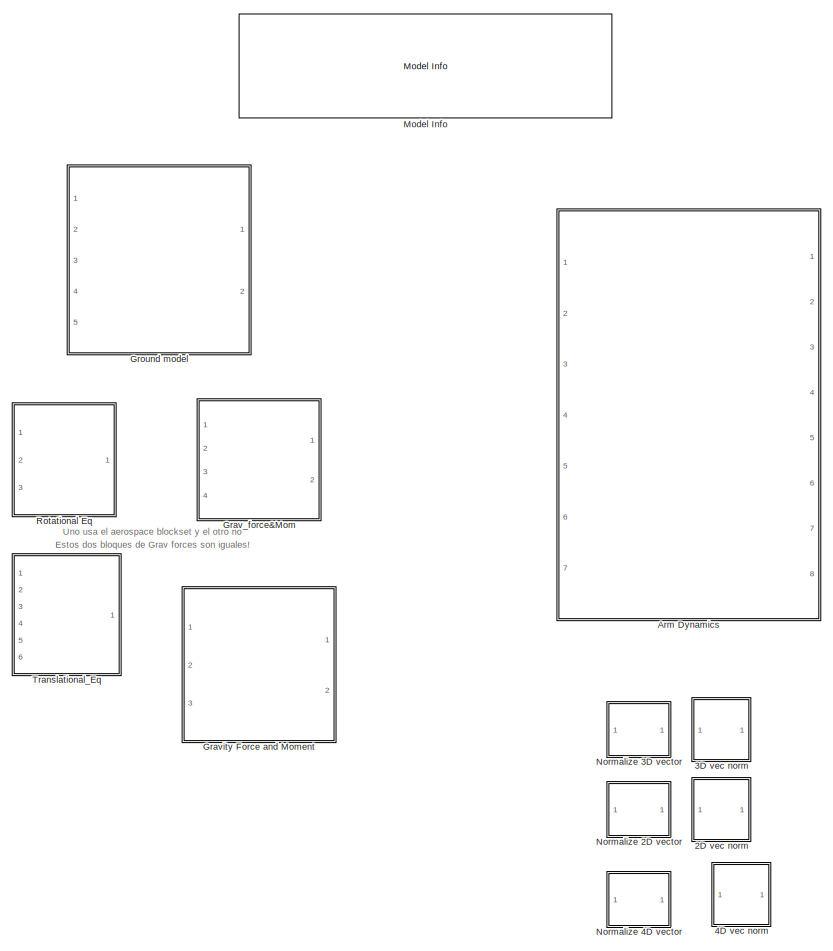
[diagram: root canvas - part 1/2, left side, full height]
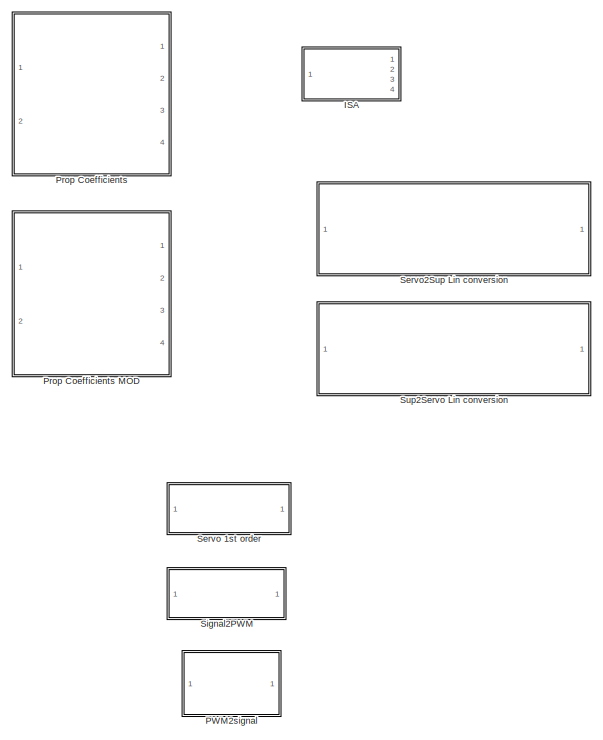
[diagram: root canvas - part 2/2, right side, full height]
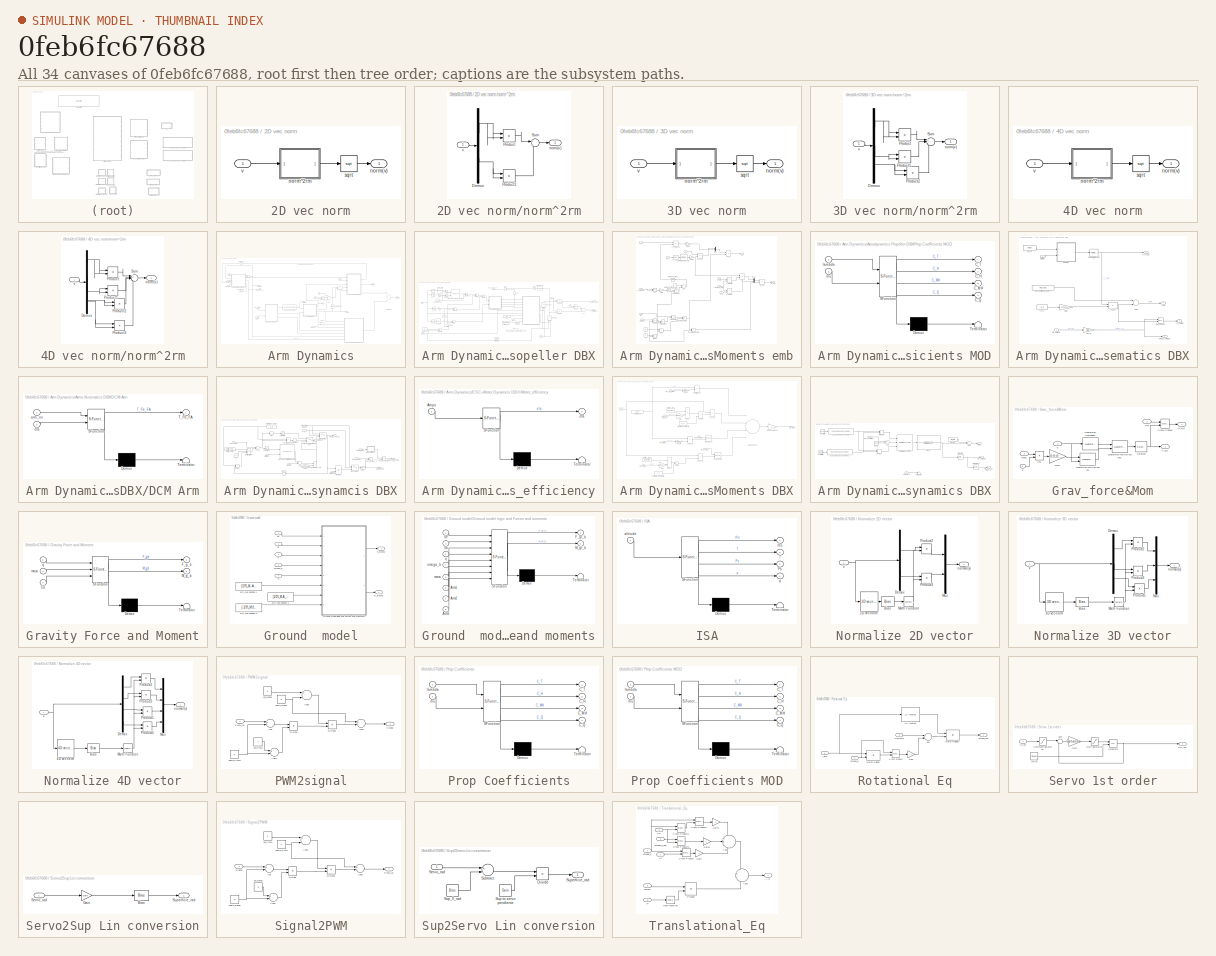
[diagram: thumbnail index - all 34 canvases of the model, root first then tree order]
MODEL slx_0feb6fc67688
KIND library
CONFIG AbsTol = auto
CONFIG FixedStep = auto
CONFIG MaxStep = auto
CONFIG MinStep = auto
CONFIG RelTol = 1e-3
CONFIG SampleTimeConstraint = Unconstrained
CONFIG Solver = ode45
CONFIG SolverMode = SingleTasking
CONFIG SolverName = ode45
CONFIG StartTime = 0.0
CONFIG StopTime = 10.0
BLOCK [SubSystem] 2D vec norm
  Ports = [1, 1]
  RequestExecContextInheritance = off
BLOCK [Outport] 2D vec norm/norm(v)
  IconDisplay = Port number
BLOCK [SubSystem] 2D vec norm/norm^2rm
  Ports = [1, 1]
  RequestExecContextInheritance = off
  TreatAsAtomicUnit = on
BLOCK [Demux] 2D vec norm/norm^2rm/Demux
  DisplayOption = bar
  Outputs = 2
  Ports = [1, 2]
BLOCK [Product] 2D vec norm/norm^2rm/Product
  InputSameDT = off
  OutDataTypeStr = Inherit: Inherit via internal rule
  Ports = [2, 1]
  RndMeth = Floor
  SaturateOnIntegerOverflow = off
BLOCK [Product] 2D vec norm/norm^2rm/Product1
  InputSameDT = off
  OutDataTypeStr = Inherit: Inherit via internal rule
  Ports = [2, 1]
  RndMeth = Floor
  SaturateOnIntegerOverflow = off
BLOCK [Sum] 2D vec norm/norm^2rm/Sum
  IconShape = round
  InputSameDT = off
  Inputs = 2
  OutDataTypeStr = Inherit: Inherit via internal rule
  Ports = [2, 1]
  SaturateOnIntegerOverflow = off
BLOCK [Outport] 2D vec norm/norm^2rm/norm(v)
  IconDisplay = Port number
BLOCK [Inport] 2D vec norm/norm^2rm/v
  IconDisplay = Port number
BLOCK [Sqrt] 2D vec norm/sqrt
  AlgorithmType = Newton-Raphson
BLOCK [Inport] 2D vec norm/v
  IconDisplay = Port number
BLOCK [SubSystem] 3D vec norm
  Ports = [1, 1]
  RequestExecContextInheritance = off
BLOCK [Outport] 3D vec norm/norm(v)
  IconDisplay = Port number
BLOCK [SubSystem] 3D vec norm/norm^2rm
  Ports = [1, 1]
  RequestExecContextInheritance = off
  TreatAsAtomicUnit = on
BLOCK [Demux] 3D vec norm/norm^2rm/Demux
  DisplayOption = bar
  Outputs = 3
  Ports = [1, 3]
BLOCK [Product] 3D vec norm/norm^2rm/Product
  InputSameDT = off
  OutDataTypeStr = Inherit: Inherit via internal rule
  Ports = [2, 1]
  RndMeth = Floor
  SaturateOnIntegerOverflow = off
BLOCK [Product] 3D vec norm/norm^2rm/Product1
  InputSameDT = off
  OutDataTypeStr = Inherit: Inherit via internal rule
  Ports = [2, 1]
  RndMeth = Floor
  SaturateOnIntegerOverflow = off
BLOCK [Product] 3D vec norm/norm^2rm/Product2
  InputSameDT = off
  OutDataTypeStr = Inherit: Inherit via internal rule
  Ports = [2, 1]
  RndMeth = Floor
  SaturateOnIntegerOverflow = off
BLOCK [Sum] 3D vec norm/norm^2rm/Sum
  IconShape = round
  InputSameDT = off
  Inputs = 3
  OutDataTypeStr = Inherit: Inherit via internal rule
  Ports = [3, 1]
  SaturateOnIntegerOverflow = off
BLOCK [Outport] 3D vec norm/norm^2rm/norm(v)
  IconDisplay = Port number
BLOCK [Inport] 3D vec norm/norm^2rm/v
  IconDisplay = Port number
BLOCK [Sqrt] 3D vec norm/sqrt
  AlgorithmType = Newton-Raphson
BLOCK [Inport] 3D vec norm/v
  IconDisplay = Port number
BLOCK [SubSystem] 4D vec norm
  Ports = [1, 1]
  RequestExecContextInheritance = off
BLOCK [Outport] 4D vec norm/norm(v)
  IconDisplay = Port number
BLOCK [SubSystem] 4D vec norm/norm^2rm
  Ports = [1, 1]
  RequestExecContextInheritance = off
  TreatAsAtomicUnit = on
BLOCK [Demux] 4D vec norm/norm^2rm/Demux
  DisplayOption = bar
  Ports = [1, 4]
BLOCK [Product] 4D vec norm/norm^2rm/Product
  InputSameDT = off
  OutDataTypeStr = Inherit: Inherit via internal rule
  Ports = [2, 1]
  RndMeth = Floor
  SaturateOnIntegerOverflow = off
BLOCK [Product] 4D vec norm/norm^2rm/Product1
  InputSameDT = off
  OutDataTypeStr = Inherit: Inherit via internal rule
  Ports = [2, 1]
  RndMeth = Floor
  SaturateOnIntegerOverflow = off
BLOCK [Product] 4D vec norm/norm^2rm/Product2
  InputSameDT = off
  OutDataTypeStr = Inherit: Inherit via internal rule
  Ports = [2, 1]
  RndMeth = Floor
  SaturateOnIntegerOverflow = off
BLOCK [Product] 4D vec norm/norm^2rm/Product3
  InputSameDT = off
  OutDataTypeStr = Inherit: Inherit via internal rule
  Ports = [2, 1]
  RndMeth = Floor
  SaturateOnIntegerOverflow = off
BLOCK [Sum] 4D vec norm/norm^2rm/Sum
  IconShape = round
  InputSameDT = off
  Inputs = 4
  OutDataTypeStr = Inherit: Inherit via internal rule
  Ports = [4, 1]
  SaturateOnIntegerOverflow = off
BLOCK [Outport] 4D vec norm/norm^2rm/norm(v)
  IconDisplay = Port number
BLOCK [Inport] 4D vec norm/norm^2rm/v
  IconDisplay = Port number
BLOCK [Sqrt] 4D vec norm/sqrt
  AlgorithmType = Newton-Raphson
BLOCK [Inport] 4D vec norm/v
  IconDisplay = Port number
BLOCK [SubSystem] Arm Dynamics
  Ports = [7, 8]
  RequestExecContextInheritance = off
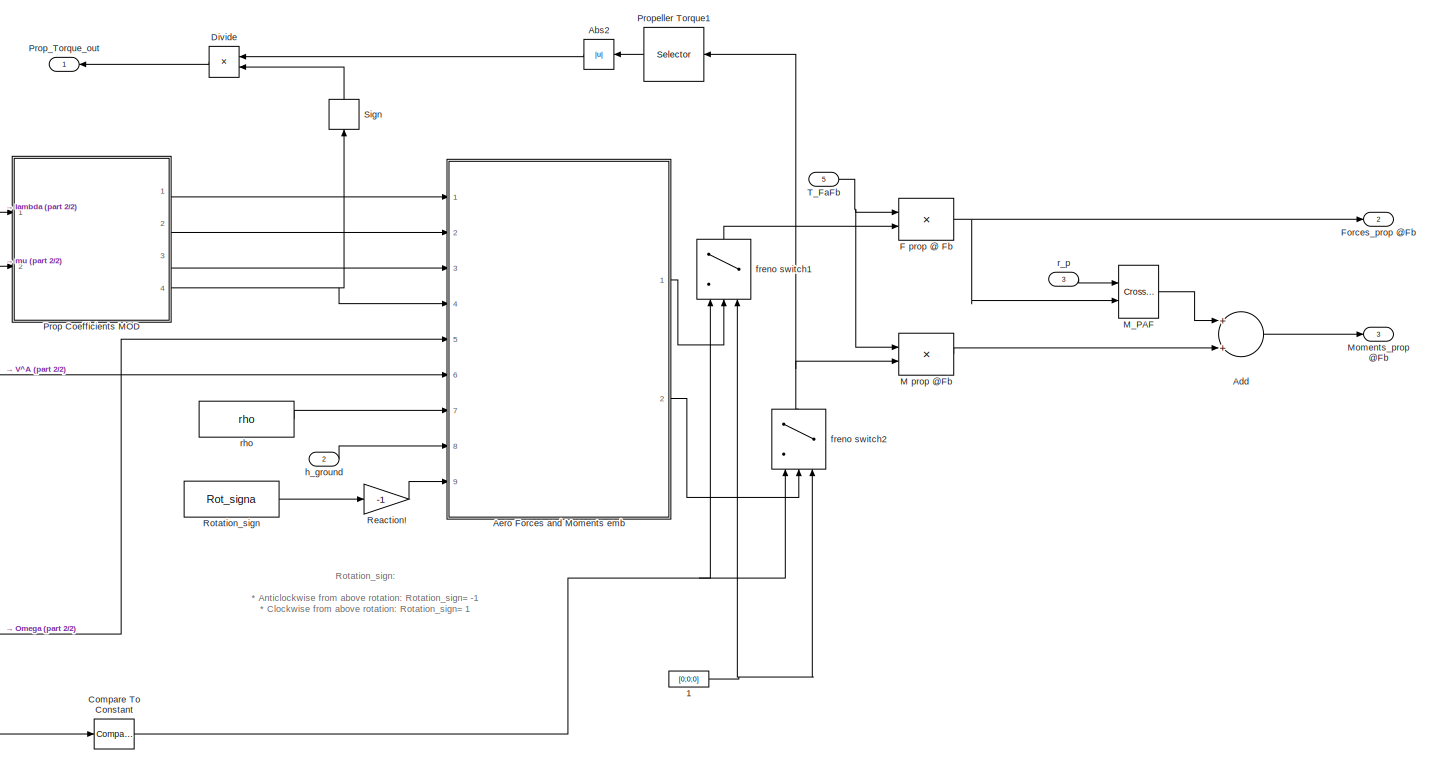
[diagram: Arm Dynamics/Aerodynamics Propeller DBX - part 1/2, right side, full height]
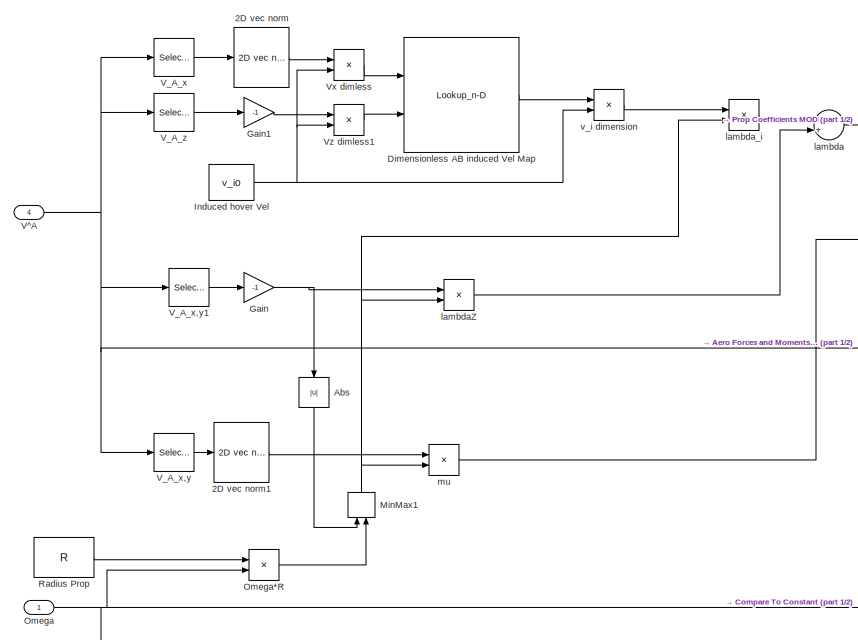
[diagram: Arm Dynamics/Aerodynamics Propeller DBX - part 2/2, left side, full height]
BLOCK [SubSystem] Arm Dynamics/Aerodynamics Propeller DBX
  MinAlgLoopOccurrences = on
  Ports = [5, 3]
  RequestExecContextInheritance = off
BLOCK [Constant] Arm Dynamics/Aerodynamics Propeller DBX/1
  Value = [0;0;0]
BLOCK [Reference] Arm Dynamics/Aerodynamics Propeller DBX/2D vec norm  REF=DBX_model/2D vec norm
  Ports = [1, 1]
  SourceBlock = DBX_model/2D vec norm
  SourceType = SubSystem
BLOCK [Reference] Arm Dynamics/Aerodynamics Propeller DBX/2D vec norm1  REF=DBX_model/2D vec norm
  Ports = [1, 1]
  SourceBlock = DBX_model/2D vec norm
  SourceType = SubSystem
BLOCK [Abs] Arm Dynamics/Aerodynamics Propeller DBX/Abs
  SaturateOnIntegerOverflow = off
BLOCK [Abs] Arm Dynamics/Aerodynamics Propeller DBX/Abs2
  SaturateOnIntegerOverflow = off
BLOCK [Sum] Arm Dynamics/Aerodynamics Propeller DBX/Add
  InputSameDT = off
  OutDataTypeStr = Inherit: Inherit via internal rule
  Ports = [2, 1]
  SaturateOnIntegerOverflow = off
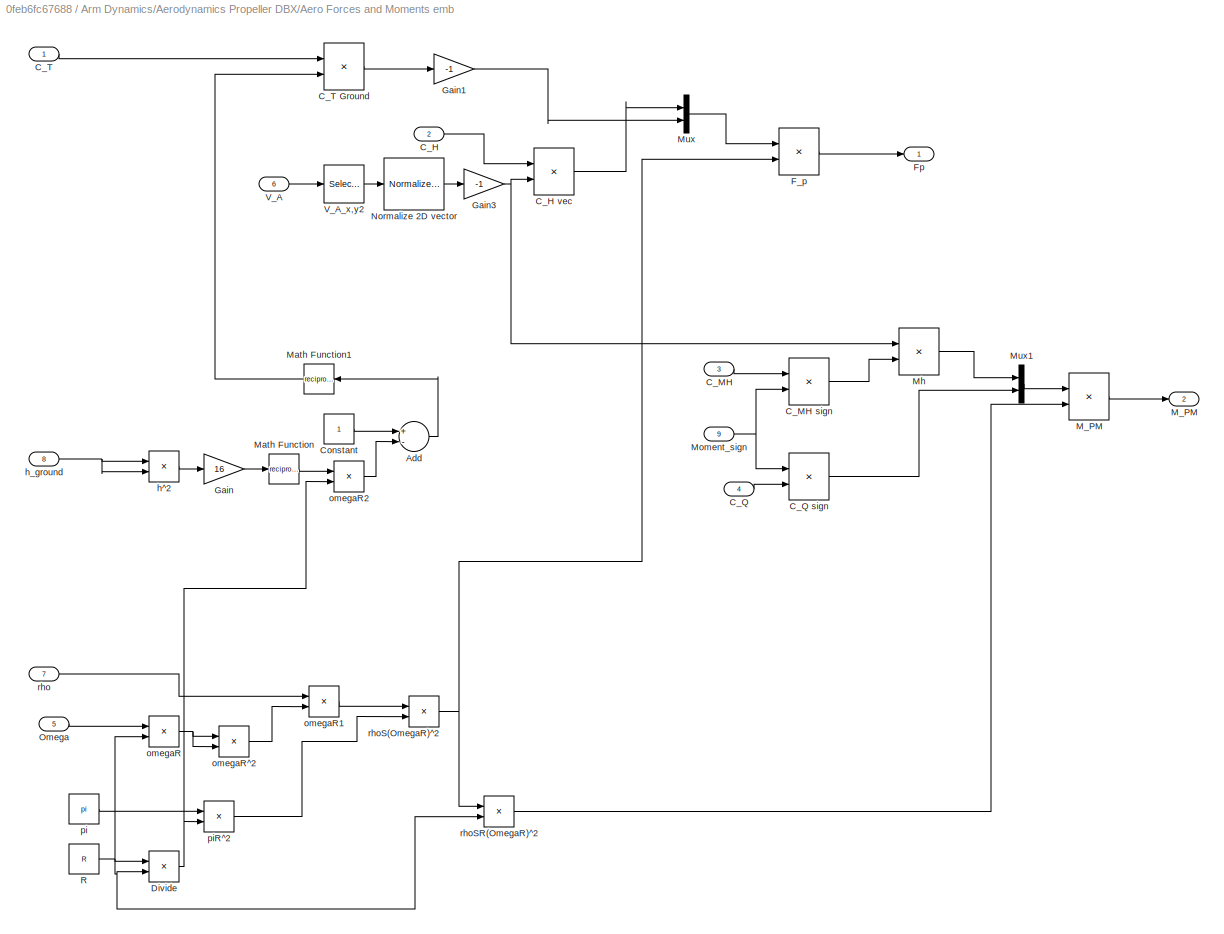
BLOCK [SubSystem] Arm Dynamics/Aerodynamics Propeller DBX/Aero Forces and Moments emb
  Ports = [9, 2]
  RequestExecContextInheritance = off
BLOCK [Sum] Arm Dynamics/Aerodynamics Propeller DBX/Aero Forces and Moments emb/Add
  InputSameDT = off
  Inputs = +-
  OutDataTypeStr = Inherit: Inherit via internal rule
  Ports = [2, 1]
  SaturateOnIntegerOverflow = off
BLOCK [Inport] Arm Dynamics/Aerodynamics Propeller DBX/Aero Forces and Moments emb/C_H
  IconDisplay = Port number
  Port = 2
BLOCK [Product] Arm Dynamics/Aerodynamics Propeller DBX/Aero Forces and Moments emb/C_H vec
  InputSameDT = off
  Inputs = **
  OutDataTypeStr = Inherit: Inherit via internal rule
  Ports = [2, 1]
  RndMeth = Floor
  SaturateOnIntegerOverflow = off
BLOCK [Inport] Arm Dynamics/Aerodynamics Propeller DBX/Aero Forces and Moments emb/C_MH
  IconDisplay = Port number
  Port = 3
BLOCK [Product] Arm Dynamics/Aerodynamics Propeller DBX/Aero Forces and Moments emb/C_MH sign
  InputSameDT = off
  Inputs = **
  OutDataTypeStr = Inherit: Inherit via internal rule
  Ports = [2, 1]
  RndMeth = Floor
  SaturateOnIntegerOverflow = off
BLOCK [Inport] Arm Dynamics/Aerodynamics Propeller DBX/Aero Forces and Moments emb/C_Q
  IconDisplay = Port number
  Port = 4
BLOCK [Product] Arm Dynamics/Aerodynamics Propeller DBX/Aero Forces and Moments emb/C_Q sign
  InputSameDT = off
  Inputs = **
  OutDataTypeStr = Inherit: Inherit via internal rule
  Ports = [2, 1]
  RndMeth = Floor
  SaturateOnIntegerOverflow = off
BLOCK [Inport] Arm Dynamics/Aerodynamics Propeller DBX/Aero Forces and Moments emb/C_T
  IconDisplay = Port number
BLOCK [Product] Arm Dynamics/Aerodynamics Propeller DBX/Aero Forces and Moments emb/C_T Ground
  InputSameDT = off
  Inputs = **
  OutDataTypeStr = Inherit: Inherit via internal rule
  Ports = [2, 1]
  RndMeth = Floor
  SaturateOnIntegerOverflow = off
BLOCK [Constant] Arm Dynamics/Aerodynamics Propeller DBX/Aero Forces and Moments emb/Constant
BLOCK [Product] Arm Dynamics/Aerodynamics Propeller DBX/Aero Forces and Moments emb/Divide
  InputSameDT = off
  Inputs = **
  OutDataTypeStr = Inherit: Inherit via internal rule
  Ports = [2, 1]
  RndMeth = Floor
  SaturateOnIntegerOverflow = off
BLOCK [Product] Arm Dynamics/Aerodynamics Propeller DBX/Aero Forces and Moments emb/F_p
  InputSameDT = off
  Inputs = **
  OutDataTypeStr = Inherit: Inherit via internal rule
  Ports = [2, 1]
  RndMeth = Floor
  SaturateOnIntegerOverflow = off
BLOCK [Outport] Arm Dynamics/Aerodynamics Propeller DBX/Aero Forces and Moments emb/Fp
  IconDisplay = Port number
BLOCK [Gain] Arm Dynamics/Aerodynamics Propeller DBX/Aero Forces and Moments emb/Gain
  Gain = 16
  OutDataTypeStr = Inherit: Inherit via internal rule
  ParamDataTypeStr = Inherit: Inherit via internal rule
  SaturateOnIntegerOverflow = off
BLOCK [Gain] Arm Dynamics/Aerodynamics Propeller DBX/Aero Forces and Moments emb/Gain1
  Gain = -1
  OutDataTypeStr = Inherit: Inherit via internal rule
  ParamDataTypeStr = Inherit: Inherit via internal rule
  SaturateOnIntegerOverflow = off
BLOCK [Gain] Arm Dynamics/Aerodynamics Propeller DBX/Aero Forces and Moments emb/Gain3
  Gain = -1
  OutDataTypeStr = Inherit: Inherit via internal rule
  ParamDataTypeStr = Inherit: Inherit via internal rule
  SaturateOnIntegerOverflow = off
BLOCK [Product] Arm Dynamics/Aerodynamics Propeller DBX/Aero Forces and Moments emb/M_PM
  InputSameDT = off
  Inputs = **
  OutDataTypeStr = Inherit: Inherit via internal rule
  Ports = [2, 1]
  RndMeth = Floor
  SaturateOnIntegerOverflow = off
BLOCK [Outport] Arm Dynamics/Aerodynamics Propeller DBX/Aero Forces and Moments emb/M_PM 
  IconDisplay = Port number
  Port = 2
BLOCK [Math] Arm Dynamics/Aerodynamics Propeller DBX/Aero Forces and Moments emb/Math Function
  Operator = reciprocal
  Ports = [1, 1]
BLOCK [Math] Arm Dynamics/Aerodynamics Propeller DBX/Aero Forces and Moments emb/Math Function1
  Operator = reciprocal
  Ports = [1, 1]
BLOCK [Product] Arm Dynamics/Aerodynamics Propeller DBX/Aero Forces and Moments emb/Mh
  InputSameDT = off
  Inputs = **
  OutDataTypeStr = Inherit: Inherit via internal rule
  Ports = [2, 1]
  RndMeth = Floor
  SaturateOnIntegerOverflow = off
BLOCK [Inport] Arm Dynamics/Aerodynamics Propeller DBX/Aero Forces and Moments emb/Moment_sign
  IconDisplay = Port number
  Port = 9
BLOCK [Mux] Arm Dynamics/Aerodynamics Propeller DBX/Aero Forces and Moments emb/Mux
  DisplayOption = bar
  Inputs = [2,1]
  Ports = [2, 1]
BLOCK [Mux] Arm Dynamics/Aerodynamics Propeller DBX/Aero Forces and Moments emb/Mux1
  DisplayOption = bar
  Inputs = [2,1]
  Ports = [2, 1]
BLOCK [Reference] Arm Dynamics/Aerodynamics Propeller DBX/Aero Forces and Moments emb/Normalize 2D vector  REF=DBX_model/Normalize 2D vector
  Ports = [1, 1]
  SourceBlock = DBX_model/Normalize 2D vector
  SourceType = SubSystem
BLOCK [Inport] Arm Dynamics/Aerodynamics Propeller DBX/Aero Forces and Moments emb/Omega
  IconDisplay = Port number
  Port = 5
BLOCK [Constant] Arm Dynamics/Aerodynamics Propeller DBX/Aero Forces and Moments emb/R
  Value = R
BLOCK [Inport] Arm Dynamics/Aerodynamics Propeller DBX/Aero Forces and Moments emb/V_A
  IconDisplay = Port number
  Port = 6
BLOCK [Selector] Arm Dynamics/Aerodynamics Propeller DBX/Aero Forces and Moments emb/V_A_x,y2
  IndexMode = Zero-based
  Indices = [0,1]
  InputPortWidth = 3
  Ports = [1, 1]
BLOCK [Product] Arm Dynamics/Aerodynamics Propeller DBX/Aero Forces and Moments emb/h^2
  InputSameDT = off
  Inputs = **
  OutDataTypeStr = Inherit: Inherit via internal rule
  Ports = [2, 1]
  RndMeth = Floor
  SaturateOnIntegerOverflow = off
BLOCK [Inport] Arm Dynamics/Aerodynamics Propeller DBX/Aero Forces and Moments emb/h_ground
  IconDisplay = Port number
  Port = 8
BLOCK [Product] Arm Dynamics/Aerodynamics Propeller DBX/Aero Forces and Moments emb/omegaR
  InputSameDT = off
  Inputs = **
  OutDataTypeStr = Inherit: Inherit via internal rule
  Ports = [2, 1]
  RndMeth = Floor
  SaturateOnIntegerOverflow = off
BLOCK [Product] Arm Dynamics/Aerodynamics Propeller DBX/Aero Forces and Moments emb/omegaR1
  InputSameDT = off
  Inputs = **
  OutDataTypeStr = Inherit: Inherit via internal rule
  Ports = [2, 1]
  RndMeth = Floor
  SaturateOnIntegerOverflow = off
BLOCK [Product] Arm Dynamics/Aerodynamics Propeller DBX/Aero Forces and Moments emb/omegaR2
  InputSameDT = off
  Inputs = **
  OutDataTypeStr = Inherit: Inherit via internal rule
  Ports = [2, 1]
  RndMeth = Floor
  SaturateOnIntegerOverflow = off
BLOCK [Product] Arm Dynamics/Aerodynamics Propeller DBX/Aero Forces and Moments emb/omegaR^2
  InputSameDT = off
  Inputs = **
  OutDataTypeStr = Inherit: Inherit via internal rule
  Ports = [2, 1]
  RndMeth = Floor
  SaturateOnIntegerOverflow = off
BLOCK [Constant] Arm Dynamics/Aerodynamics Propeller DBX/Aero Forces and Moments emb/pi
  Value = pi
BLOCK [Product] Arm Dynamics/Aerodynamics Propeller DBX/Aero Forces and Moments emb/piR^2
  InputSameDT = off
  Inputs = **
  OutDataTypeStr = Inherit: Inherit via internal rule
  Ports = [2, 1]
  RndMeth = Floor
  SaturateOnIntegerOverflow = off
BLOCK [Inport] Arm Dynamics/Aerodynamics Propeller DBX/Aero Forces and Moments emb/rho
  IconDisplay = Port number
  Port = 7
BLOCK [Product] Arm Dynamics/Aerodynamics Propeller DBX/Aero Forces and Moments emb/rhoS(OmegaR)^2
  InputSameDT = off
  Inputs = **
  OutDataTypeStr = Inherit: Inherit via internal rule
  Ports = [2, 1]
  RndMeth = Floor
  SaturateOnIntegerOverflow = off
BLOCK [Product] Arm Dynamics/Aerodynamics Propeller DBX/Aero Forces and Moments emb/rhoSR(OmegaR)^2
  InputSameDT = off
  Inputs = **
  OutDataTypeStr = Inherit: Inherit via internal rule
  Ports = [2, 1]
  RndMeth = Floor
  SaturateOnIntegerOverflow = off
BLOCK [Reference] Arm Dynamics/Aerodynamics Propeller DBX/Compare To Constant  REF=simulink/Logic and Bit
Operations/Compare
To Constant
  OutDataTypeStr = boolean
  Ports = [1, 1]
  SourceBlock = simulink/Logic and Bit\nOperations/Compare\nTo Constant
  SourceType = Compare To Constant
  ZeroCross = on
  const = 76
  relop = <=
BLOCK [Lookup_n-D] Arm Dynamics/Aerodynamics Propeller DBX/Dimensionless AB induced Vel Map
  BreakpointsForDimension1 = Vx_adim
  BreakpointsForDimension2 = Vz_adim
  BreakpointsForDimension3 = [5, 7]
  Ports = [2, 1]
  RndMeth = Simplest
  Table = v_i_adim
BLOCK [Product] Arm Dynamics/Aerodynamics Propeller DBX/Divide
  InputSameDT = off
  Inputs = **
  OutDataTypeStr = Inherit: Inherit via internal rule
  Ports = [2, 1]
  RndMeth = Floor
  SaturateOnIntegerOverflow = off
BLOCK [Product] Arm Dynamics/Aerodynamics Propeller DBX/F prop @ Fb
  InputSameDT = off
  Multiplication = Matrix(*)
  OutDataTypeStr = Inherit: Inherit via internal rule
  Ports = [2, 1]
  RndMeth = Floor
  SaturateOnIntegerOverflow = off
BLOCK [Outport] Arm Dynamics/Aerodynamics Propeller DBX/Forces_prop @Fb
  IconDisplay = Port number
  Port = 2
BLOCK [Gain] Arm Dynamics/Aerodynamics Propeller DBX/Gain
  Gain = -1
  OutDataTypeStr = Inherit: Inherit via internal rule
  ParamDataTypeStr = Inherit: Inherit via internal rule
  SaturateOnIntegerOverflow = off
BLOCK [Gain] Arm Dynamics/Aerodynamics Propeller DBX/Gain1
  Gain = -1
  OutDataTypeStr = Inherit: Inherit via internal rule
  ParamDataTypeStr = Inherit: Inherit via internal rule
  SaturateOnIntegerOverflow = off
BLOCK [Constant] Arm Dynamics/Aerodynamics Propeller DBX/Induced hover Vel
  Value = v_i0
BLOCK [Product] Arm Dynamics/Aerodynamics Propeller DBX/M prop @Fb
  InputSameDT = off
  Multiplication = Matrix(*)
  OutDataTypeStr = Inherit: Inherit via internal rule
  Ports = [2, 1]
  RndMeth = Floor
  SaturateOnIntegerOverflow = off
BLOCK [Reference] Arm Dynamics/Aerodynamics Propeller DBX/M_PAF  REF=vrlib/Utilities/Cross Product
  Ports = [2, 1]
  SourceBlock = vrlib/Utilities/Cross Product
  SourceType = Cross Product
BLOCK [MinMax] Arm Dynamics/Aerodynamics Propeller DBX/MinMax1
  Function = max
  InputSameDT = off
  Inputs = 2
  Ports = [2, 1]
  SaturateOnIntegerOverflow = off
BLOCK [Outport] Arm Dynamics/Aerodynamics Propeller DBX/Moments_prop @Fb
  IconDisplay = Port number
  Port = 3
BLOCK [Inport] Arm Dynamics/Aerodynamics Propeller DBX/Omega
  IconDisplay = Port number
BLOCK [Product] Arm Dynamics/Aerodynamics Propeller DBX/Omega*R
  InputSameDT = off
  Inputs = **
  OutDataTypeStr = Inherit: Inherit via internal rule
  Ports = [2, 1]
  RndMeth = Floor
  SaturateOnIntegerOverflow = off
BLOCK [SubSystem] Arm Dynamics/Aerodynamics Propeller DBX/Prop Coefficients MOD
  ErrorFcn = Stateflow.Translate.translate
  PermitHierarchicalResolution = ExplicitOnly
  Ports = [2, 4]
  RequestExecContextInheritance = off
  SFBlockType = MATLAB Function
BLOCK [Demux] Arm Dynamics/Aerodynamics Propeller DBX/Prop Coefficients MOD/ Demux 
  Outputs = 1
  Ports = [1, 1]
BLOCK [S-Function] Arm Dynamics/Aerodynamics Propeller DBX/Prop Coefficients MOD/ SFunction 
  FunctionName = sf_sfun
  Parameters = C_d0,a,kappa_Q,kappa_T,lambda_0_Q,lambda_0_T,sigma,theta_0,theta_1
  PortCounts = [2 5]
  Ports = [2, 5]
  Tag = Stateflow S-Function DBX_model 2
BLOCK [Terminator] Arm Dynamics/Aerodynamics Propeller DBX/Prop Coefficients MOD/ Terminator 
BLOCK [Outport] Arm Dynamics/Aerodynamics Propeller DBX/Prop Coefficients MOD/C_H
  IconDisplay = Port number
  Port = 2
BLOCK [Outport] Arm Dynamics/Aerodynamics Propeller DBX/Prop Coefficients MOD/C_MH
  IconDisplay = Port number
  Port = 3
BLOCK [Outport] Arm Dynamics/Aerodynamics Propeller DBX/Prop Coefficients MOD/C_Q
  IconDisplay = Port number
  Port = 4
BLOCK [Outport] Arm Dynamics/Aerodynamics Propeller DBX/Prop Coefficients MOD/C_T
  IconDisplay = Port number
BLOCK [Inport] Arm Dynamics/Aerodynamics Propeller DBX/Prop Coefficients MOD/lambda
  IconDisplay = Port number
BLOCK [Inport] Arm Dynamics/Aerodynamics Propeller DBX/Prop Coefficients MOD/mu
  IconDisplay = Port number
  Port = 2
BLOCK [Outport] Arm Dynamics/Aerodynamics Propeller DBX/Prop_Torque_out
  IconDisplay = Port number
BLOCK [Selector] Arm Dynamics/Aerodynamics Propeller DBX/Propeller Torque1
  IndexMode = Zero-based
  Indices = 2
  InputPortWidth = 3
  Ports = [1, 1]
BLOCK [Constant] Arm Dynamics/Aerodynamics Propeller DBX/Radius Prop
  Value = R
BLOCK [Gain] Arm Dynamics/Aerodynamics Propeller DBX/Reaction!
  Gain = -1
  OutDataTypeStr = Inherit: Inherit via internal rule
  ParamDataTypeStr = Inherit: Inherit via internal rule
  SaturateOnIntegerOverflow = off
BLOCK [Constant] Arm Dynamics/Aerodynamics Propeller DBX/Rotation_sign
  Value = Rot_signa
BLOCK [Signum] Arm Dynamics/Aerodynamics Propeller DBX/Sign
BLOCK [Inport] Arm Dynamics/Aerodynamics Propeller DBX/T_FaFb
  IconDisplay = Port number
  Port = 5
BLOCK [Inport] Arm Dynamics/Aerodynamics Propeller DBX/V^A
  IconDisplay = Port number
  Port = 4
BLOCK [Selector] Arm Dynamics/Aerodynamics Propeller DBX/V_A_x
  Indices = [1 2]
  InputPortWidth = 3
  Ports = [1, 1]
BLOCK [Selector] Arm Dynamics/Aerodynamics Propeller DBX/V_A_x,y
  Indices = [1 2]
  InputPortWidth = 3
  Ports = [1, 1]
BLOCK [Selector] Arm Dynamics/Aerodynamics Propeller DBX/V_A_x,y1
  Indices = [3]
  InputPortWidth = 3
  Ports = [1, 1]
BLOCK [Selector] Arm Dynamics/Aerodynamics Propeller DBX/V_A_z
  Indices = 3
  InputPortWidth = 3
  Ports = [1, 1]
BLOCK [Product] Arm Dynamics/Aerodynamics Propeller DBX/Vx dimless
  InputSameDT = off
  Inputs = */
  OutDataTypeStr = Inherit: Inherit via internal rule
  Ports = [2, 1]
  RndMeth = Floor
  SaturateOnIntegerOverflow = off
BLOCK [Product] Arm Dynamics/Aerodynamics Propeller DBX/Vz dimless1
  InputSameDT = off
  Inputs = */
  OutDataTypeStr = Inherit: Inherit via internal rule
  Ports = [2, 1]
  RndMeth = Floor
  SaturateOnIntegerOverflow = off
BLOCK [MultiPortSwitch] Arm Dynamics/Aerodynamics Propeller DBX/freno switch1
  DataPortOrder = Zero-based contiguous
  InputSameDT = off
  Inputs = 2
  Ports = [3, 1]
  SaturateOnIntegerOverflow = off
BLOCK [MultiPortSwitch] Arm Dynamics/Aerodynamics Propeller DBX/freno switch2
  DataPortOrder = Zero-based contiguous
  InputSameDT = off
  Inputs = 2
  Ports = [3, 1]
  SaturateOnIntegerOverflow = off
BLOCK [Inport] Arm Dynamics/Aerodynamics Propeller DBX/h_ground
  IconDisplay = Port number
  Port = 2
BLOCK [Sum] Arm Dynamics/Aerodynamics Propeller DBX/lambda
  InputSameDT = off
  OutDataTypeStr = Inherit: Inherit via internal rule
  Ports = [2, 1]
  SaturateOnIntegerOverflow = off
BLOCK [Product] Arm Dynamics/Aerodynamics Propeller DBX/lambdaZ
  InputSameDT = off
  Inputs = */
  OutDataTypeStr = Inherit: Inherit via internal rule
  Ports = [2, 1]
  RndMeth = Floor
  SaturateOnIntegerOverflow = off
BLOCK [Product] Arm Dynamics/Aerodynamics Propeller DBX/lambda_i
  InputSameDT = off
  Inputs = */
  OutDataTypeStr = Inherit: Inherit via internal rule
  Ports = [2, 1]
  RndMeth = Floor
  SaturateOnIntegerOverflow = off
BLOCK [Product] Arm Dynamics/Aerodynamics Propeller DBX/mu
  InputSameDT = off
  Inputs = */
  OutDataTypeStr = Inherit: Inherit via internal rule
  Ports = [2, 1]
  RndMeth = Floor
  SaturateOnIntegerOverflow = off
BLOCK [Inport] Arm Dynamics/Aerodynamics Propeller DBX/r_p
  IconDisplay = Port number
  Port = 3
BLOCK [Constant] Arm Dynamics/Aerodynamics Propeller DBX/rho
  Value = rho
BLOCK [Product] Arm Dynamics/Aerodynamics Propeller DBX/v_i dimension
  InputSameDT = off
  Inputs = **
  OutDataTypeStr = Inherit: Inherit via internal rule
  Ports = [2, 1]
  RndMeth = Floor
  SaturateOnIntegerOverflow = off
BLOCK [SubSystem] Arm Dynamics/Arms Kinematics DBX
  Ports = [2, 4]
  RequestExecContextInheritance = off
BLOCK [Sum] Arm Dynamics/Arms Kinematics DBX/Add3
  InputSameDT = off
  OutDataTypeStr = Inherit: Inherit via internal rule
  Ports = [2, 1]
  SaturateOnIntegerOverflow = off
BLOCK [Constant] Arm Dynamics/Arms Kinematics DBX/Arm_no
  Value = Value
BLOCK [Reference] Arm Dynamics/Arms Kinematics DBX/Cross Product  REF=vrlib/Utilities/Cross Product
  Ports = [2, 1]
  SourceBlock = vrlib/Utilities/Cross Product
  SourceType = Cross Product
BLOCK [SubSystem] Arm Dynamics/Arms Kinematics DBX/DCM Arm
  ErrorFcn = Stateflow.Translate.translate
  PermitHierarchicalResolution = ExplicitOnly
  Ports = [2, 1]
  RequestExecContextInheritance = off
  SFBlockType = MATLAB Function
  TreatAsAtomicUnit = on
BLOCK [Demux] Arm Dynamics/Arms Kinematics DBX/DCM Arm/ Demux 
  Outputs = 1
  Ports = [1, 1]
BLOCK [S-Function] Arm Dynamics/Arms Kinematics DBX/DCM Arm/ SFunction 
  FunctionName = sf_sfun
  PortCounts = [2 2]
  Ports = [2, 2]
  Tag = Stateflow S-Function DBX_model 9
BLOCK [Terminator] Arm Dynamics/Arms Kinematics DBX/DCM Arm/ Terminator 
BLOCK [Outport] Arm Dynamics/Arms Kinematics DBX/DCM Arm/T_Fb_FA
  IconDisplay = Port number
BLOCK [Inport] Arm Dynamics/Arms Kinematics DBX/DCM Arm/arm_no
  IconDisplay = Port number
BLOCK [Inport] Arm Dynamics/Arms Kinematics DBX/DCM Arm/eta
  IconDisplay = Port number
  Port = 2
BLOCK [Product] Arm Dynamics/Arms Kinematics DBX/Fa->Fb
  InputSameDT = off
  Multiplication = Matrix(*)
  OutDataTypeStr = Inherit: Inherit via internal rule
  Ports = [2, 1]
  RndMeth = Floor
  SaturateOnIntegerOverflow = off
BLOCK [Gain] Arm Dynamics/Arms Kinematics DBX/Gain7
  Gain = [0;0;1]
  OutDataTypeStr = Inherit: Inherit via internal rule
  ParamDataTypeStr = Inherit: Inherit via internal rule
  SaturateOnIntegerOverflow = off
BLOCK [Constant] Arm Dynamics/Arms Kinematics DBX/Hub_position aka r_RP_i
  Value = Hub_pos
BLOCK [PermuteDimensions] Arm Dynamics/Arms Kinematics DBX/Permute Dimensions
BLOCK [Outport] Arm Dynamics/Arms Kinematics DBX/T_F_a,Fb
  IconDisplay = Port number
  Port = 3
BLOCK [Inport] Arm Dynamics/Arms Kinematics DBX/eta (rad)
  IconDisplay = Port number
BLOCK [Gain] Arm Dynamics/Arms Kinematics DBX/eta_dir
  Gain = Gain
  OutDataTypeStr = Inherit: Inherit via internal rule
  ParamDataTypeStr = Inherit: Inherit via internal rule
  SaturateOnIntegerOverflow = off
BLOCK [Inport] Arm Dynamics/Arms Kinematics DBX/eta_dot (rad//s)
  IconDisplay = Port number
  Port = 2
BLOCK [Constant] Arm Dynamics/Arms Kinematics DBX/h_p_i
  Value = h_p
BLOCK [Outport] Arm Dynamics/Arms Kinematics DBX/omega_Ab (rad//s)
  IconDisplay = Port number
  Port = 4
BLOCK [Outport] Arm Dynamics/Arms Kinematics DBX/r_p (m)
  IconDisplay = Port number
BLOCK [Outport] Arm Dynamics/Arms Kinematics DBX/r_p_dot (m//s)
  IconDisplay = Port number
  Port = 2
BLOCK [Reference] Arm Dynamics/Cross Product  REF=vrlib/Utilities/Cross Product
  Ports = [2, 1]
  SourceBlock = vrlib/Utilities/Cross Product
  SourceType = Cross Product
BLOCK [Inport] Arm Dynamics/Current_drain_A
  IconDisplay = Port number
  Port = 7
BLOCK [SubSystem] Arm Dynamics/ESC+Motor Dynamcis DBX
  Ports = [5, 3]
  RequestExecContextInheritance = off
BLOCK [Constant] Arm Dynamics/ESC+Motor Dynamcis DBX/0
  Value = 0
BLOCK [Lookup_n-D] Arm Dynamics/ESC+Motor Dynamcis DBX/2-D Torque-Throttle-Omega Map
  BreakpointsForDimension1 = Torque_TTO_vec
  BreakpointsForDimension2 = Throtle_TTO_vec
  DiagnosticForOutOfRangeInput = Warning
  Ports = [2, 1]
  RemoveProtectionInput = on
  RndMeth = Simplest
  Table = Omega_TTO'
BLOCK [Sum] Arm Dynamics/ESC+Motor Dynamcis DBX/Add
  InputSameDT = off
  Inputs = +-
  OutDataTypeStr = Inherit: Inherit via internal rule
  Ports = [2, 1]
  SaturateOnIntegerOverflow = off
BLOCK [Sum] Arm Dynamics/ESC+Motor Dynamcis DBX/Add1
  InputSameDT = off
  OutDataTypeStr = Inherit: Inherit via internal rule
  Ports = [2, 1]
  SaturateOnIntegerOverflow = off
BLOCK [Bias] Arm Dynamics/ESC+Motor Dynamcis DBX/Bias
  Bias = eps
  SaturateOnIntegerOverflow = off
BLOCK [MultiPortSwitch] Arm Dynamics/ESC+Motor Dynamcis DBX/Correspondetn Omega_dot
  DataPortOrder = Zero-based contiguous
  InputSameDT = off
  Inputs = 2
  Ports = [3, 1]
  SaturateOnIntegerOverflow = off
BLOCK [Inport] Arm Dynamics/ESC+Motor Dynamcis DBX/Current_drain_A
  IconDisplay = Port number
  Port = 5
BLOCK [Product] Arm Dynamics/ESC+Motor Dynamcis DBX/Divide1
  InputSameDT = off
  Inputs = **
  OutDataTypeStr = Inherit: Inherit via internal rule
  Ports = [2, 1]
  RndMeth = Floor
  SaturateOnIntegerOverflow = off
BLOCK [Product] Arm Dynamics/ESC+Motor Dynamcis DBX/Forced Omega_dot
  InputSameDT = off
  Inputs = */
  OutDataTypeStr = Inherit: Inherit via internal rule
  Ports = [2, 1]
  RndMeth = Floor
  SaturateOnIntegerOverflow = off
BLOCK [Product] Arm Dynamics/ESC+Motor Dynamcis DBX/Free Omega_dot
  InputSameDT = off
  Inputs = /*
  OutDataTypeStr = Inherit: Inherit via internal rule
  Ports = [2, 1]
  RndMeth = Floor
  SaturateOnIntegerOverflow = off
BLOCK [Constant] Arm Dynamics/ESC+Motor Dynamcis DBX/Freno
  Value = Freno_param
BLOCK [Constant] Arm Dynamics/ESC+Motor Dynamcis DBX/Inertia of prop+motor
  Value = J_T
BLOCK [Inport] Arm Dynamics/ESC+Motor Dynamcis DBX/Initial Omega
  IconDisplay = Port number
  Port = 3
BLOCK [Integrator] Arm Dynamics/ESC+Motor Dynamcis DBX/Integrator
  InitialConditionSource = external
  Ports = [2, 1]
BLOCK [Memory] Arm Dynamics/ESC+Motor Dynamcis DBX/Memory4
  InheritSampleTime = on
BLOCK [SubSystem] Arm Dynamics/ESC+Motor Dynamcis DBX/Motor_efficiency
  ErrorFcn = Stateflow.Translate.translate
  PermitHierarchicalResolution = ExplicitOnly
  Ports = [1, 1]
  RequestExecContextInheritance = off
  SFBlockType = MATLAB Function
  TreatAsAtomicUnit = on
BLOCK [Demux] Arm Dynamics/ESC+Motor Dynamcis DBX/Motor_efficiency/ Demux 
  Outputs = 1
  Ports = [1, 1]
BLOCK [S-Function] Arm Dynamics/ESC+Motor Dynamcis DBX/Motor_efficiency/ SFunction 
  FunctionName = sf_sfun
  PortCounts = [1 2]
  Ports = [1, 2]
  Tag = Stateflow S-Function DBX_model 3
BLOCK [Terminator] Arm Dynamics/ESC+Motor Dynamcis DBX/Motor_efficiency/ Terminator 
BLOCK [Inport] Arm Dynamics/ESC+Motor Dynamcis DBX/Motor_efficiency/Amps
  IconDisplay = Port number
BLOCK [Outport] Arm Dynamics/ESC+Motor Dynamcis DBX/Motor_efficiency/eta
  IconDisplay = Port number
BLOCK [MultiPortSwitch] Arm Dynamics/ESC+Motor Dynamcis DBX/Multiport Switch
  InputSameDT = off
  Inputs = 2
  Ports = [3, 1]
  SaturateOnIntegerOverflow = off
BLOCK [Inport] Arm Dynamics/ESC+Motor Dynamcis DBX/Omega
  IconDisplay = Port number
  Port = 2
BLOCK [Outport] Arm Dynamics/ESC+Motor Dynamcis DBX/Omega_dot_out
  IconDisplay = Port number
  Port = 2
BLOCK [Outport] Arm Dynamics/ESC+Motor Dynamcis DBX/Omega_out
  IconDisplay = Port number
BLOCK [Outport] Arm Dynamics/ESC+Motor Dynamcis DBX/Power_motor_drain_w
  IconDisplay = Port number
  Port = 3
BLOCK [Product] Arm Dynamics/ESC+Motor Dynamcis DBX/Power_of_motor_w
  InputSameDT = off
  Inputs = /*
  OutDataTypeStr = Inherit: Inherit via internal rule
  Ports = [2, 1]
  RndMeth = Floor
  SaturateOnIntegerOverflow = off
BLOCK [Product] Arm Dynamics/ESC+Motor Dynamcis DBX/Power_of_prop_w
  InputSameDT = off
  OutDataTypeStr = Inherit: Inherit via internal rule
  Ports = [2, 1]
  RndMeth = Floor
  SaturateOnIntegerOverflow = off
BLOCK [Inport] Arm Dynamics/ESC+Motor Dynamcis DBX/Prop Torque
  IconDisplay = Port number
  Port = 4
BLOCK [InportShadow] Arm Dynamics/ESC+Motor Dynamcis DBX/Prop Torque1
  IconDisplay = Port number
  Port = 4
BLOCK [Saturate] Arm Dynamics/ESC+Motor Dynamcis DBX/Saturation
  InputPortMap = u0
  LowerLimit = 0
  Ports = [1, 1]
  UpperLimit = 1
BLOCK [Saturate] Arm Dynamics/ESC+Motor Dynamcis DBX/Saturation1
  InputPortMap = u0
  LowerLimit = 0
  Ports = [1, 1]
  UpperLimit = inf
BLOCK [Signum] Arm Dynamics/ESC+Motor Dynamcis DBX/Sign
BLOCK [Terminator] Arm Dynamics/ESC+Motor Dynamcis DBX/Terminator
BLOCK [Inport] Arm Dynamics/ESC+Motor Dynamcis DBX/Throttle_V
  IconDisplay = Port number
BLOCK [Constant] Arm Dynamics/ESC+Motor Dynamcis DBX/Time constant motors
  Value = tau
BLOCK [UnaryMinus] Arm Dynamics/ESC+Motor Dynamcis DBX/Unary Minus
BLOCK [MultiPortSwitch] Arm Dynamics/ESC+Motor Dynamcis DBX/freno switch
  InputSameDT = off
  Inputs = 2
  Ports = [3, 1]
  SaturateOnIntegerOverflow = off
BLOCK [MultiPortSwitch] Arm Dynamics/ESC+Motor Dynamcis DBX/freno switch1
  InputSameDT = off
  Inputs = 2
  Ports = [3, 1]
  SaturateOnIntegerOverflow = off
BLOCK [Constant] Arm Dynamics/ESC+Motor Dynamcis DBX/inertia_switch
  Value = Inertia_swithc_var
BLOCK [Constant] Arm Dynamics/ESC+Motor Dynamcis DBX/null
  Value = 0
BLOCK [Product] Arm Dynamics/F_b->F_A
  InputSameDT = off
  Multiplication = Matrix(*)
  OutDataTypeStr = Inherit: Inherit via internal rule
  Ports = [2, 1]
  RndMeth = Floor
  SaturateOnIntegerOverflow = off
BLOCK [Outport] Arm Dynamics/Forces
  IconDisplay = Port number
BLOCK [Ground] Arm Dynamics/Ground
BLOCK [SubSystem] Arm Dynamics/Gyroscopic Moments DBX
  Ports = [7, 1]
  RequestExecContextInheritance = off
BLOCK [Reference] Arm Dynamics/Gyroscopic Moments DBX/Cross Product  REF=vrlib/Utilities/Cross Product
  Ports = [2, 1]
  SourceBlock = vrlib/Utilities/Cross Product
  SourceType = Cross Product
BLOCK [Reference] Arm Dynamics/Gyroscopic Moments DBX/Cross Product1  REF=vrlib/Utilities/Cross Product
  Ports = [2, 1]
  SourceBlock = vrlib/Utilities/Cross Product
  SourceType = Cross Product
BLOCK [Product] Arm Dynamics/Gyroscopic Moments DBX/Divide
  InputSameDT = off
  Inputs = **
  OutDataTypeStr = Inherit: Inherit via internal rule
  Ports = [2, 1]
  RndMeth = Floor
  SaturateOnIntegerOverflow = off
BLOCK [Product] Arm Dynamics/Gyroscopic Moments DBX/Divide1
  InputSameDT = off
  Inputs = **
  OutDataTypeStr = Inherit: Inherit via internal rule
  Ports = [2, 1]
  RndMeth = Floor
  SaturateOnIntegerOverflow = off
BLOCK [Product] Arm Dynamics/Gyroscopic Moments DBX/F_A->F_b
  InputSameDT = off
  Multiplication = Matrix(*)
  OutDataTypeStr = Inherit: Inherit via internal rule
  Ports = [2, 1]
  RndMeth = Floor
  SaturateOnIntegerOverflow = off
BLOCK [Product] Arm Dynamics/Gyroscopic Moments DBX/F_A->F_b1
  InputSameDT = off
  Multiplication = Matrix(*)
  OutDataTypeStr = Inherit: Inherit via internal rule
  Ports = [2, 1]
  RndMeth = Floor
  SaturateOnIntegerOverflow = off
BLOCK [Gain] Arm Dynamics/Gyroscopic Moments DBX/Gain1
  Gain = [0;0;1]
  OutDataTypeStr = Inherit: Inherit via internal rule
  ParamDataTypeStr = Inherit: Inherit via internal rule
  SaturateOnIntegerOverflow = off
BLOCK [Gain] Arm Dynamics/Gyroscopic Moments DBX/Gain3
  Gain = [0;0;1]
  OutDataTypeStr = Inherit: Inherit via internal rule
  ParamDataTypeStr = Inherit: Inherit via internal rule
  SaturateOnIntegerOverflow = off
BLOCK [Constant] Arm Dynamics/Gyroscopic Moments DBX/J_arm (in rot axis)
  Value = J_FA
BLOCK [Product] Arm Dynamics/Gyroscopic Moments DBX/L_eta_dot
  InputSameDT = off
  Multiplication = Matrix(*)
  OutDataTypeStr = Inherit: Inherit via internal rule
  Ports = [2, 1]
  RndMeth = Floor
  SaturateOnIntegerOverflow = off
BLOCK [Product] Arm Dynamics/Gyroscopic Moments DBX/L_prop
  InputSameDT = off
  Inputs = **
  OutDataTypeStr = Inherit: Inherit via internal rule
  Ports = [2, 1]
  RndMeth = Floor
  SaturateOnIntegerOverflow = off
BLOCK [Outport] Arm Dynamics/Gyroscopic Moments DBX/M_gyro @Fb
  IconDisplay = Port number
BLOCK [Inport] Arm Dynamics/Gyroscopic Moments DBX/Omega (rad//s)
  IconDisplay = Port number
  Port = 6
BLOCK [Inport] Arm Dynamics/Gyroscopic Moments DBX/Omega_dot (rad//s^2)
  IconDisplay = Port number
  Port = 7
BLOCK [Constant] Arm Dynamics/Gyroscopic Moments DBX/Propeller and motor inertia
  Value = J_T
BLOCK [Constant] Arm Dynamics/Gyroscopic Moments DBX/Propeller and motor inertia1
  Value = J_T
BLOCK [Constant] Arm Dynamics/Gyroscopic Moments DBX/Rotation_sign
  Value = Rot_sign
BLOCK [Constant] Arm Dynamics/Gyroscopic Moments DBX/Rotation_sign1
  Value = Rot_sign
BLOCK [Gain] Arm Dynamics/Gyroscopic Moments DBX/Sing of Gyro Moments
  Gain = -1
  OutDataTypeStr = Inherit: Inherit via internal rule
  ParamDataTypeStr = Inherit: Inherit via internal rule
  SaturateOnIntegerOverflow = off
BLOCK [Inport] Arm Dynamics/Gyroscopic Moments DBX/T_FAFb
  IconDisplay = Port number
BLOCK [Sum] Arm Dynamics/Gyroscopic Moments DBX/Total - Gyro Moment
  InputSameDT = off
  Inputs = ++++
  OutDataTypeStr = Inherit: Inherit via internal rule
  Ports = [4, 1]
  SaturateOnIntegerOverflow = off
BLOCK [Product] Arm Dynamics/Gyroscopic Moments DBX/dL//dt of eta_dot_dot
  InputSameDT = off
  Multiplication = Matrix(*)
  OutDataTypeStr = Inherit: Inherit via internal rule
  Ports = [2, 1]
  RndMeth = Floor
  SaturateOnIntegerOverflow = off
BLOCK [Product] Arm Dynamics/Gyroscopic Moments DBX/dL//dt of prop
  InputSameDT = off
  Inputs = **
  OutDataTypeStr = Inherit: Inherit via internal rule
  Ports = [2, 1]
  RndMeth = Floor
  SaturateOnIntegerOverflow = off
BLOCK [Gain] Arm Dynamics/Gyroscopic Moments DBX/eta_dir
  Gain = Gain
  OutDataTypeStr = Inherit: Inherit via internal rule
  ParamDataTypeStr = Inherit: Inherit via internal rule
  SaturateOnIntegerOverflow = off
BLOCK [Gain] Arm Dynamics/Gyroscopic Moments DBX/eta_dir1
  Gain = Gain
  OutDataTypeStr = Inherit: Inherit via internal rule
  ParamDataTypeStr = Inherit: Inherit via internal rule
  SaturateOnIntegerOverflow = off
BLOCK [Inport] Arm Dynamics/Gyroscopic Moments DBX/eta_dot (rad//s)
  IconDisplay = Port number
  Port = 4
BLOCK [Inport] Arm Dynamics/Gyroscopic Moments DBX/eta_dot _dot(rad//s^2)
  IconDisplay = Port number
  Port = 5
BLOCK [Inport] Arm Dynamics/Gyroscopic Moments DBX/omega_A  (rad//s)
  IconDisplay = Port number
  Port = 2
BLOCK [Inport] Arm Dynamics/Gyroscopic Moments DBX/omega_b  (rad//s)
  IconDisplay = Port number
  Port = 3
BLOCK [Memory] Arm Dynamics/Initial_torque
  InheritSampleTime = on
  X0 = Init_torque
BLOCK [Outport] Arm Dynamics/Moments
  IconDisplay = Port number
  Port = 2
BLOCK [Inport] Arm Dynamics/Omega_Initial
  IconDisplay = Port number
  Port = 3
BLOCK [Outport] Arm Dynamics/Omega_dot_out
  IconDisplay = Port number
  Port = 5
BLOCK [Outport] Arm Dynamics/Omega_out
  IconDisplay = Port number
  Port = 4
BLOCK [PermuteDimensions] Arm Dynamics/Permute Dimensions
BLOCK [Outport] Arm Dynamics/Power_motor_drain_W
  IconDisplay = Port number
  Port = 3
BLOCK [Reference] Arm Dynamics/Servo2Sup Lin conversion  REF=DBX_model/Servo2Sup Lin conversion
  Bias = Bias
  Gain = Gain_servos
  Ports = [1, 1]
  SourceBlock = DBX_model/Servo2Sup Lin conversion
BLOCK [SubSystem] Arm Dynamics/Servos Dynamics DBX
  Ports = [2, 3]
  RequestExecContextInheritance = off
BLOCK [Sum] Arm Dynamics/Servos Dynamics DBX/Add
  InputSameDT = off
  Inputs = +-
  OutDataTypeStr = Inherit: Inherit via internal rule
  Ports = [2, 1]
  SaturateOnIntegerOverflow = off
BLOCK [Sum] Arm Dynamics/Servos Dynamics DBX/Add1
  InputSameDT = off
  OutDataTypeStr = Inherit: Inherit via internal rule
  Ports = [2, 1]
  SaturateOnIntegerOverflow = off
BLOCK [Derivative] Arm Dynamics/Servos Dynamics DBX/Derivative
  CoefficientInTFapproximation = derv_param
BLOCK [Derivative] Arm Dynamics/Servos Dynamics DBX/Derivative2
  CoefficientInTFapproximation = derv_param
BLOCK [Constant] Arm Dynamics/Servos Dynamics DBX/Lower limit
  Value = LowerLimit
BLOCK [MinMax] Arm Dynamics/Servos Dynamics DBX/MinMax
  InputSameDT = off
  Inputs = 2
  Ports = [2, 1]
  SaturateOnIntegerOverflow = off
BLOCK [MinMax] Arm Dynamics/Servos Dynamics DBX/MinMax1
  Function = max
  InputSameDT = off
  Inputs = 2
  Ports = [2, 1]
  SaturateOnIntegerOverflow = off
BLOCK [Reference] Arm Dynamics/Servos Dynamics DBX/Saturation Dynamic  REF=simulink/Discontinuities/Saturation
Dynamic
  DoSatur = off
  LockScale = off
  OutDataType = fixdt(1, 16)
  OutDataTypeStr = Inherit: Same as second input
  OutMax = []
  OutMin = []
  OutScaling = 2^-10
  OutputDataTypeScalingMode = Same as second input
  Ports = [3, 1]
  RndMeth = Floor
  SourceBlock = simulink/Discontinuities/Saturation\nDynamic
  SourceType = Saturation Dynamic
BLOCK [Reference] Arm Dynamics/Servos Dynamics DBX/Sup2Servo Lin conversion  REF=DBX_model/Sup2Servo Lin conversion
  Bias = Bias
  Gain = Gain
  Ports = [1, 1]
  SourceBlock = DBX_model/Sup2Servo Lin conversion
BLOCK [Reference] Arm Dynamics/Servos Dynamics DBX/Sup2Servo Lin conversion1  REF=DBX_model/Sup2Servo Lin conversion
  Bias = Bias
  Gain = Gain
  Ports = [1, 1]
  SourceBlock = DBX_model/Sup2Servo Lin conversion
BLOCK [Terminator] Arm Dynamics/Servos Dynamics DBX/Terminator
BLOCK [Inport] Arm Dynamics/Servos Dynamics DBX/Torques?
  IconDisplay = Port number
  Port = 2
BLOCK [Outport] Arm Dynamics/Servos Dynamics DBX/eta (rad)
  IconDisplay = Port number
BLOCK [TransferFcn] Arm Dynamics/Servos Dynamics DBX/eta_1
  Denominator = [1 xi*omega_n omega_n^2]
  Numerator = omega_n^2
BLOCK [Inport] Arm Dynamics/Servos Dynamics DBX/eta_comm (rad)
  IconDisplay = Port number
BLOCK [Outport] Arm Dynamics/Servos Dynamics DBX/eta_dot (rad//s)
  IconDisplay = Port number
  Port = 2
BLOCK [Outport] Arm Dynamics/Servos Dynamics DBX/eta_dot_dot (rad//s^2)
  IconDisplay = Port number
  Port = 3
BLOCK [Constant] Arm Dynamics/Servos Dynamics DBX/init_eta
  Value = init_eta
BLOCK [Constant] Arm Dynamics/Servos Dynamics DBX/init_eta1
  Value = init_eta
BLOCK [Constant] Arm Dynamics/Servos Dynamics DBX/upper limit
  Value = UpperLimit
BLOCK [Outport] Arm Dynamics/T_FaFb
  IconDisplay = Port number
  Port = 6
BLOCK [Inport] Arm Dynamics/Throttle_V
  IconDisplay = Port number
BLOCK [Sum] Arm Dynamics/Total moments
  InputSameDT = off
  OutDataTypeStr = Inherit: Inherit via internal rule
  Ports = [2, 1]
  SaturateOnIntegerOverflow = off
BLOCK [Sum] Arm Dynamics/V^A (m//s)
  InputSameDT = off
  Inputs = +++
  OutDataTypeStr = Inherit: Inherit via internal rule
  Ports = [3, 1]
  SaturateOnIntegerOverflow = off
BLOCK [Inport] Arm Dynamics/V_b
  IconDisplay = Port number
  Port = 6
BLOCK [Outport] Arm Dynamics/eta (rad)
  IconDisplay = Port number
  Port = 7
BLOCK [Inport] Arm Dynamics/eta_comm (rad)
  IconDisplay = Port number
  Port = 2
BLOCK [Inport] Arm Dynamics/h_ground
  IconDisplay = Port number
  Port = 4
BLOCK [Memory] Arm Dynamics/initial_omega
  InheritSampleTime = on
  X0 = Initi_omega
BLOCK [Sum] Arm Dynamics/omega_A
  InputSameDT = off
  OutDataTypeStr = Inherit: Inherit via internal rule
  Ports = [2, 1]
  SaturateOnIntegerOverflow = off
BLOCK [Inport] Arm Dynamics/omega_b
  IconDisplay = Port number
  Port = 5
BLOCK [InportShadow] Arm Dynamics/omega_b1
  IconDisplay = Port number
  Port = 5
BLOCK [Outport] Arm Dynamics/r_p
  IconDisplay = Port number
  Port = 8
BLOCK [SubSystem] Grav_force&Mom
  Ports = [4, 2]
  RequestExecContextInheritance = off
BLOCK [Inport] Grav_force&Mom/CG
  IconDisplay = Port number
  Port = 3
BLOCK [Reference] Grav_force&Mom/Cross Product  REF=vrlib/Utilities/Cross Product
  Ports = [2, 1]
  SourceBlock = vrlib/Utilities/Cross Product
  SourceType = Cross Product
BLOCK [Outport] Grav_force&Mom/F_g_b
  IconDisplay = Port number
BLOCK [Gain] Grav_force&Mom/Gain
  Gain = [0;0;0;1]
  OutDataTypeStr = Inherit: Inherit via internal rule
  ParamDataTypeStr = Inherit: Inherit via internal rule
  SaturateOnIntegerOverflow = off
BLOCK [Outport] Grav_force&Mom/M_g_b
  IconDisplay = Port number
  Port = 2
BLOCK [Reference] Grav_force&Mom/Quaternion Conjugate  REF=aerolibutil/Quaternion
Conjugate
  Ports = [1, 1]
  SourceBlock = aerolibutil/Quaternion\nConjugate
  SourceType = Quaternion Conjugate
BLOCK [Reference] Grav_force&Mom/Quaternion Multiplication  REF=aerolibutil/Quaternion
Multiplication
  Ports = [2, 1]
  SourceBlock = aerolibutil/Quaternion\nMultiplication
  SourceType = Quaternion Multiplication
BLOCK [Reference] Grav_force&Mom/Quaternion Multiplication1  REF=aerolibutil/Quaternion
Multiplication
  Ports = [2, 1]
  SourceBlock = aerolibutil/Quaternion\nMultiplication
  SourceType = Quaternion Multiplication
BLOCK [Selector] Grav_force&Mom/Selector
  IndexMode = Zero-based
  Indices = [1:3]
  InputPortWidth = 4
  Ports = [1, 1]
BLOCK [Inport] Grav_force&Mom/g
  IconDisplay = Port number
  Port = 4
BLOCK [Inport] Grav_force&Mom/mass
  IconDisplay = Port number
  Port = 2
BLOCK [Product] Grav_force&Mom/mg
  InputSameDT = off
  OutDataTypeStr = Inherit: Inherit via internal rule
  Ports = [2, 1]
  SaturateOnIntegerOverflow = off
BLOCK [Inport] Grav_force&Mom/q
  IconDisplay = Port number
BLOCK [SubSystem] Gravity Force and Moment
  ErrorFcn = Stateflow.Translate.translate
  PermitHierarchicalResolution = ExplicitOnly
  Ports = [3, 2]
  RequestExecContextInheritance = off
  SFBlockType = MATLAB Function
BLOCK [Demux] Gravity Force and Moment/ Demux 
  Outputs = 1
  Ports = [1, 1]
BLOCK [S-Function] Gravity Force and Moment/ SFunction 
  FunctionName = sf_sfun
  Parameters = g
  PortCounts = [3 3]
  Ports = [3, 3]
  Tag = Stateflow S-Function DBX_model 4
BLOCK [Terminator] Gravity Force and Moment/ Terminator 
BLOCK [Inport] Gravity Force and Moment/CG
  IconDisplay = Port number
  Port = 3
BLOCK [Outport] Gravity Force and Moment/F_g_b
  IconDisplay = Port number
BLOCK [Outport] Gravity Force and Moment/M_g_b
  IconDisplay = Port number
  Port = 2
BLOCK [Inport] Gravity Force and Moment/mass
  IconDisplay = Port number
  Port = 2
BLOCK [Inport] Gravity Force and Moment/q
  IconDisplay = Port number
BLOCK [SubSystem] Ground  model
  Ports = [5, 2]
  RequestExecContextInheritance = off
BLOCK [Outport] Ground  model/F_ground
  IconDisplay = Port number
BLOCK [SubSystem] Ground  model/Ground model logic and Forces and moments
  ErrorFcn = Stateflow.Translate.translate
  PermitHierarchicalResolution = ExplicitOnly
  Ports = [8, 2]
  RequestExecContextInheritance = off
  SFBlockType = MATLAB Function
  TreatAsAtomicUnit = on
BLOCK [Demux] Ground  model/Ground model logic and Forces and moments/ Demux 
  Outputs = 1
  Ports = [1, 1]
BLOCK [S-Function] Ground  model/Ground model logic and Forces and moments/ SFunction 
  FunctionName = sf_sfun
  Parameters = g
  PortCounts = [8 3]
  Ports = [8, 3]
  Tag = Stateflow S-Function DBX_model 27
BLOCK [Terminator] Ground  model/Ground model logic and Forces and moments/ Terminator 
BLOCK [Inport] Ground  model/Ground model logic and Forces and moments/Arm1
  IconDisplay = Port number
  Port = 6
BLOCK [Inport] Ground  model/Ground model logic and Forces and moments/Arm2
  IconDisplay = Port number
  Port = 7
BLOCK [Inport] Ground  model/Ground model logic and Forces and moments/Arm3
  IconDisplay = Port number
  Port = 8
BLOCK [Outport] Ground  model/Ground model logic and Forces and moments/F_gr_b
  IconDisplay = Port number
BLOCK [Outport] Ground  model/Ground model logic and Forces and moments/M_gr_b
  IconDisplay = Port number
  Port = 2
BLOCK [Inport] Ground  model/Ground model logic and Forces and moments/Vb
  IconDisplay = Port number
  Port = 2
BLOCK [Inport] Ground  model/Ground model logic and Forces and moments/Xe
  IconDisplay = Port number
BLOCK [Inport] Ground  model/Ground model logic and Forces and moments/mass
  IconDisplay = Port number
  Port = 5
BLOCK [Inport] Ground  model/Ground model logic and Forces and moments/omega_b
  IconDisplay = Port number
  Port = 4
BLOCK [Inport] Ground  model/Ground model logic and Forces and moments/q
  IconDisplay = Port number
  Port = 3
BLOCK [Outport] Ground  model/M_ground
  IconDisplay = Port number
  Port = 2
BLOCK [Inport] Ground  model/Vb
  IconDisplay = Port number
  Port = 2
BLOCK [Inport] Ground  model/Xe
  IconDisplay = Port number
BLOCK [Constant] Ground  model/arm_hub position 1
  Value = [1/3*L_M;-A_M/2;h_1]
BLOCK [Constant] Ground  model/arm_hub position 2
  Value = [1/3*L_M;A_M/2;h_1]
BLOCK [Constant] Ground  model/arm_hub position 3
  Value = [-2/3*L_M;0;h_3]
BLOCK [Inport] Ground  model/m
  IconDisplay = Port number
  Port = 5
BLOCK [Inport] Ground  model/omega_b
  IconDisplay = Port number
  Port = 4
BLOCK [Inport] Ground  model/q
  IconDisplay = Port number
  Port = 3
BLOCK [SubSystem] ISA
  ErrorFcn = Stateflow.Translate.translate
  PermitHierarchicalResolution = ExplicitOnly
  Ports = [1, 4]
  RequestExecContextInheritance = off
  SFBlockType = MATLAB Function
  TreatAsAtomicUnit = on
BLOCK [Demux] ISA/ Demux 
  Outputs = 1
  Ports = [1, 1]
BLOCK [S-Function] ISA/ SFunction 
  FunctionName = sf_sfun
  PortCounts = [1 5]
  Ports = [1, 5]
  Tag = Stateflow S-Function DBX_model 6
BLOCK [Terminator] ISA/ Terminator 
BLOCK [Outport] ISA/Ps
  IconDisplay = Port number
  Port = 3
BLOCK [Outport] ISA/T
  IconDisplay = Port number
  Port = 2
BLOCK [Outport] ISA/a
  IconDisplay = Port number
  Port = 4
BLOCK [Inport] ISA/altitude
  IconDisplay = Port number
BLOCK [Outport] ISA/rho
  IconDisplay = Port number
BLOCK [Reference] Model Info  REF=simulink/Model-Wide
Utilities/Model Info
  DisplayStringWithTags = Model Info\n\nCreado por %<Creator>\nModificado el %<LastModificationDate> por %<LastModifiedBy>\nVersion %<ModelVersion>
  Frame = on
  HorizontalTextAlignment = Center
  LeftAlignmentValue = 0.5
  MaskDisplayString = Model Info\n\nCreado por David\nModificado el 11-dic-2015 23:36:10 por David\nVersion 1.00
  Ports = []
  SourceBlock = simulink/Model-Wide\nUtilities/Model Info
  SourceBlockDiagram = DBX_model
  SourceType = CMBlock
  TagMaxNumber = 20
BLOCK [SubSystem] Normalize 2D vector
  Ports = [1, 1]
  RequestExecContextInheritance = off
BLOCK [Reference] Normalize 2D vector/2D vec norm  REF=DBX_model/2D vec norm
  Ports = [1, 1]
  SourceBlock = DBX_model/2D vec norm
  SourceType = SubSystem
BLOCK [Bias] Normalize 2D vector/Bias
  Bias = eps
  SaturateOnIntegerOverflow = off
BLOCK [Demux] Normalize 2D vector/Demux
  DisplayOption = bar
  Outputs = 2
  Ports = [1, 2]
BLOCK [Math] Normalize 2D vector/Math Function
  Operator = reciprocal
  Ports = [1, 1]
BLOCK [Mux] Normalize 2D vector/Mux
  DisplayOption = bar
  Inputs = 2
  Ports = [2, 1]
BLOCK [Product] Normalize 2D vector/Product2
  InputSameDT = off
  Inputs = **
  OutDataTypeStr = Inherit: Inherit via internal rule
  Ports = [2, 1]
  RndMeth = Floor
  SaturateOnIntegerOverflow = off
BLOCK [Product] Normalize 2D vector/Product3
  InputSameDT = off
  Inputs = **
  OutDataTypeStr = Inherit: Inherit via internal rule
  Ports = [2, 1]
  RndMeth = Floor
  SaturateOnIntegerOverflow = off
BLOCK [Outport] Normalize 2D vector/normal(v)
  IconDisplay = Port number
BLOCK [Inport] Normalize 2D vector/v
  IconDisplay = Port number
BLOCK [SubSystem] Normalize 3D vector
  Ports = [1, 1]
  RequestExecContextInheritance = off
BLOCK [Reference] Normalize 3D vector/3D vec norm  REF=DBX_model/3D vec norm
  Ports = [1, 1]
  SourceBlock = DBX_model/3D vec norm
  SourceType = SubSystem
BLOCK [Bias] Normalize 3D vector/Bias
  Bias = eps
  SaturateOnIntegerOverflow = off
BLOCK [Demux] Normalize 3D vector/Demux
  DisplayOption = bar
  Outputs = 3
  Ports = [1, 3]
BLOCK [Math] Normalize 3D vector/Math Function
  Operator = reciprocal
  Ports = [1, 1]
BLOCK [Mux] Normalize 3D vector/Mux
  DisplayOption = bar
  Inputs = 3
  Ports = [3, 1]
BLOCK [Product] Normalize 3D vector/Product1
  InputSameDT = off
  Inputs = **
  OutDataTypeStr = Inherit: Inherit via internal rule
  Ports = [2, 1]
  RndMeth = Floor
  SaturateOnIntegerOverflow = off
BLOCK [Product] Normalize 3D vector/Product2
  InputSameDT = off
  Inputs = **
  OutDataTypeStr = Inherit: Inherit via internal rule
  Ports = [2, 1]
  RndMeth = Floor
  SaturateOnIntegerOverflow = off
BLOCK [Product] Normalize 3D vector/Product3
  InputSameDT = off
  Inputs = **
  OutDataTypeStr = Inherit: Inherit via internal rule
  Ports = [2, 1]
  RndMeth = Floor
  SaturateOnIntegerOverflow = off
BLOCK [Outport] Normalize 3D vector/normal(v)
  IconDisplay = Port number
BLOCK [Inport] Normalize 3D vector/v
  IconDisplay = Port number
BLOCK [SubSystem] Normalize 4D vector
  Ports = [1, 1]
  RequestExecContextInheritance = off
BLOCK [Reference] Normalize 4D vector/4D vec norm  REF=DBX_model/4D vec norm
  Ports = [1, 1]
  SourceBlock = DBX_model/4D vec norm
  SourceType = SubSystem
BLOCK [Bias] Normalize 4D vector/Bias
  Bias = eps
  SaturateOnIntegerOverflow = off
BLOCK [Demux] Normalize 4D vector/Demux
  DisplayOption = bar
  Ports = [1, 4]
BLOCK [Math] Normalize 4D vector/Math Function
  Operator = reciprocal
  Ports = [1, 1]
BLOCK [Mux] Normalize 4D vector/Mux
  DisplayOption = bar
  Ports = [4, 1]
BLOCK [Product] Normalize 4D vector/Product1
  InputSameDT = off
  Inputs = **
  OutDataTypeStr = Inherit: Inherit via internal rule
  Ports = [2, 1]
  RndMeth = Floor
  SaturateOnIntegerOverflow = off
BLOCK [Product] Normalize 4D vector/Product2
  InputSameDT = off
  Inputs = **
  OutDataTypeStr = Inherit: Inherit via internal rule
  Ports = [2, 1]
  RndMeth = Floor
  SaturateOnIntegerOverflow = off
BLOCK [Product] Normalize 4D vector/Product3
  InputSameDT = off
  Inputs = **
  OutDataTypeStr = Inherit: Inherit via internal rule
  Ports = [2, 1]
  RndMeth = Floor
  SaturateOnIntegerOverflow = off
BLOCK [Product] Normalize 4D vector/Product4
  InputSameDT = off
  Inputs = **
  OutDataTypeStr = Inherit: Inherit via internal rule
  Ports = [2, 1]
  RndMeth = Floor
  SaturateOnIntegerOverflow = off
BLOCK [Outport] Normalize 4D vector/normal(v)
  IconDisplay = Port number
BLOCK [Inport] Normalize 4D vector/v
  IconDisplay = Port number
BLOCK [SubSystem] PWM2signal
  Ports = [1, 1]
  RequestExecContextInheritance = off
  TreatAsAtomicUnit = on
BLOCK [Sum] PWM2signal/Add
  InputSameDT = off
  Inputs = +-
  OutDataTypeStr = Inherit: Inherit via internal rule
  Ports = [2, 1]
  SaturateOnIntegerOverflow = off
BLOCK [Sum] PWM2signal/Add1
  InputSameDT = off
  Inputs = +-
  OutDataTypeStr = Inherit: Inherit via internal rule
  Ports = [2, 1]
  SaturateOnIntegerOverflow = off
BLOCK [Sum] PWM2signal/Add2
  InputSameDT = off
  Inputs = +-
  OutDataTypeStr = Inherit: Inherit via internal rule
  Ports = [2, 1]
  SaturateOnIntegerOverflow = off
BLOCK [Sum] PWM2signal/Add3
  InputSameDT = off
  OutDataTypeStr = Inherit: Inherit via internal rule
  Ports = [2, 1]
  SaturateOnIntegerOverflow = off
BLOCK [Product] PWM2signal/Divide
  InputSameDT = off
  Inputs = */
  OutDataTypeStr = Inherit: Inherit via internal rule
  Ports = [2, 1]
  RndMeth = Floor
  SaturateOnIntegerOverflow = off
BLOCK [Product] PWM2signal/Divide1
  InputSameDT = off
  Inputs = **
  OutDataTypeStr = Inherit: Inherit via internal rule
  Ports = [2, 1]
  RndMeth = Floor
  SaturateOnIntegerOverflow = off
BLOCK [Inport] PWM2signal/PWM_us
  IconDisplay = Port number
BLOCK [Outport] PWM2signal/Signal
  IconDisplay = Port number
BLOCK [Constant] PWM2signal/down_PWM
  Value = a
BLOCK [Constant] PWM2signal/down_signal
  Value = b
BLOCK [Constant] PWM2signal/up_PWM
  Value = c
BLOCK [Constant] PWM2signal/up_signal
  Value = d
BLOCK [SubSystem] Prop Coefficients
  ErrorFcn = Stateflow.Translate.translate
  PermitHierarchicalResolution = ExplicitOnly
  Ports = [2, 4]
  RequestExecContextInheritance = off
  SFBlockType = MATLAB Function
BLOCK [SubSystem] Prop Coefficients MOD
  ErrorFcn = Stateflow.Translate.translate
  PermitHierarchicalResolution = ExplicitOnly
  Ports = [2, 4]
  RequestExecContextInheritance = off
  SFBlockType = MATLAB Function
BLOCK [Demux] Prop Coefficients MOD/ Demux 
  Outputs = 1
  Ports = [1, 1]
BLOCK [S-Function] Prop Coefficients MOD/ SFunction 
  FunctionName = sf_sfun
  Parameters = C_d0,a,kappa_Q,kappa_T,lambda_0_Q,lambda_0_T,sigma,theta_0,theta_1
  PortCounts = [2 5]
  Ports = [2, 5]
  Tag = Stateflow S-Function DBX_model 1
BLOCK [Terminator] Prop Coefficients MOD/ Terminator 
BLOCK [Outport] Prop Coefficients MOD/C_H
  IconDisplay = Port number
  Port = 2
BLOCK [Outport] Prop Coefficients MOD/C_MH
  IconDisplay = Port number
  Port = 3
BLOCK [Outport] Prop Coefficients MOD/C_Q
  IconDisplay = Port number
  Port = 4
BLOCK [Outport] Prop Coefficients MOD/C_T
  IconDisplay = Port number
BLOCK [Inport] Prop Coefficients MOD/lambda
  IconDisplay = Port number
BLOCK [Inport] Prop Coefficients MOD/mu
  IconDisplay = Port number
  Port = 2
BLOCK [Demux] Prop Coefficients/ Demux 
  Outputs = 1
  Ports = [1, 1]
BLOCK [S-Function] Prop Coefficients/ SFunction 
  FunctionName = sf_sfun
  Parameters = C_d0,a,sigma,theta_0,theta_1
  PortCounts = [2 5]
  Ports = [2, 5]
  Tag = Stateflow S-Function DBX_model 17
BLOCK [Terminator] Prop Coefficients/ Terminator 
BLOCK [Outport] Prop Coefficients/C_H
  IconDisplay = Port number
  Port = 2
BLOCK [Outport] Prop Coefficients/C_MH
  IconDisplay = Port number
  Port = 3
BLOCK [Outport] Prop Coefficients/C_Q
  IconDisplay = Port number
  Port = 4
BLOCK [Outport] Prop Coefficients/C_T
  IconDisplay = Port number
BLOCK [Inport] Prop Coefficients/lambda
  IconDisplay = Port number
BLOCK [Inport] Prop Coefficients/mu
  IconDisplay = Port number
  Port = 2
BLOCK [SubSystem] Rotational Eq
  Ports = [3, 1]
  RequestExecContextInheritance = off
BLOCK [Reference] Rotational Eq/ LU Inverse  REF=dspinverses/ LU Inverse
  Ports = [1, 1]
  SourceBlock = dspinverses/ LU Inverse
  SourceType = LU Inverse
BLOCK [Sum] Rotational Eq/Add
  InputSameDT = off
  Inputs = +-
  OutDataTypeStr = Inherit: Inherit via internal rule
  Ports = [2, 1]
  SaturateOnIntegerOverflow = off
BLOCK [Reference] Rotational Eq/Cross Product  REF=vrlib/Utilities/Cross Product
  Ports = [2, 1]
  SourceBlock = vrlib/Utilities/Cross Product
  SourceType = Cross Product
BLOCK [Gain] Rotational Eq/Gain
  Gain = -1
  OutDataTypeStr = Inherit: Inherit via internal rule
  ParamDataTypeStr = Inherit: Inherit via internal rule
  SaturateOnIntegerOverflow = off
BLOCK [Inport] Rotational Eq/I_BAC
  IconDisplay = Port number
  Port = 3
BLOCK [Product] Rotational Eq/Matrix Multiply
  InputSameDT = off
  Multiplication = Matrix(*)
  OutDataTypeStr = Inherit: Inherit via internal rule
  Ports = [2, 1]
  RndMeth = Floor
  SaturateOnIntegerOverflow = off
BLOCK [Product] Rotational Eq/Matrix Multiply1
  InputSameDT = off
  Multiplication = Matrix(*)
  OutDataTypeStr = Inherit: Inherit via internal rule
  Ports = [2, 1]
  RndMeth = Floor
  SaturateOnIntegerOverflow = off
BLOCK [Inport] Rotational Eq/Moments
  IconDisplay = Port number
  Port = 2
BLOCK [Inport] Rotational Eq/omega_b
  IconDisplay = Port number
BLOCK [Outport] Rotational Eq/omega_dot
  IconDisplay = Port number
BLOCK [SubSystem] Servo 1st order
  Ports = [1, 1]
  RequestExecContextInheritance = off
  TreatAsAtomicUnit = on
BLOCK [Saturate] Servo 1st order/Command Saturation
  InputPortMap = u0
  LowerLimit = Min_def
  Ports = [1, 1]
  UpperLimit = Max_defle
BLOCK [Gain] Servo 1st order/Gain
  Gain = Ganancia
BLOCK [Inport] Servo 1st order/In_rad
  IconDisplay = Port number
BLOCK [Constant] Servo 1st order/Initial
  Value = Init_def
BLOCK [Integrator] Servo 1st order/Integrator 
  InitialCondition = trim_control(2)
  InitialConditionSource = external
  LimitOutput = on
  LowerSaturationLimit = Min_def
  Ports = [2, 1]
  UpperSaturationLimit = Max_defle
BLOCK [Outport] Servo 1st order/Out_rad
  IconDisplay = Port number
BLOCK [Saturate] Servo 1st order/Rate Saturation
  InputPortMap = u0
  LowerLimit = Min_rate
  Ports = [1, 1]
  UpperLimit = Max_rate
BLOCK [Sum] Servo 1st order/Sum
  IconShape = round
  Inputs = |+-
  Ports = [2, 1]
BLOCK [SubSystem] Servo2Sup Lin conversion
  Ports = [1, 1]
  RequestExecContextInheritance = off
BLOCK [Bias] Servo2Sup Lin conversion/Bias
  Bias = Bias
  SaturateOnIntegerOverflow = off
BLOCK [Gain] Servo2Sup Lin conversion/Gain
  Gain = Gain
  OutDataTypeStr = Inherit: Inherit via internal rule
  ParamDataTypeStr = Inherit: Inherit via internal rule
  SaturateOnIntegerOverflow = off
BLOCK [Inport] Servo2Sup Lin conversion/Servo_rad
  IconDisplay = Port number
BLOCK [Outport] Servo2Sup Lin conversion/Superficie_rad
  IconDisplay = Port number
BLOCK [SubSystem] Signal2PWM
  Ports = [1, 1]
  RequestExecContextInheritance = off
  TreatAsAtomicUnit = on
BLOCK [Sum] Signal2PWM/Add
  AccumDataTypeStr = Inherit: Same as first input
  InputSameDT = off
  Inputs = +-
  OutDataTypeStr = Inherit: Inherit via internal rule
  Ports = [2, 1]
  SaturateOnIntegerOverflow = off
BLOCK [Sum] Signal2PWM/Add1
  InputSameDT = off
  Inputs = +-
  OutDataTypeStr = Inherit: Inherit via internal rule
  Ports = [2, 1]
  SaturateOnIntegerOverflow = off
BLOCK [Sum] Signal2PWM/Add2
  InputSameDT = off
  Inputs = +-
  OutDataTypeStr = Inherit: Inherit via internal rule
  Ports = [2, 1]
  SaturateOnIntegerOverflow = off
BLOCK [Sum] Signal2PWM/Add3
  AccumDataTypeStr = Inherit: Same as first input
  InputSameDT = off
  OutDataTypeStr = Inherit: Inherit via internal rule
  Ports = [2, 1]
  SaturateOnIntegerOverflow = off
BLOCK [Product] Signal2PWM/Divide
  InputSameDT = off
  Inputs = */
  OutDataTypeStr = Inherit: Inherit via internal rule
  Ports = [2, 1]
  RndMeth = Floor
  SaturateOnIntegerOverflow = off
BLOCK [Product] Signal2PWM/Divide1
  InputSameDT = off
  Inputs = **
  OutDataTypeStr = Inherit: Inherit via internal rule
  Ports = [2, 1]
  RndMeth = Floor
  SaturateOnIntegerOverflow = off
BLOCK [Outport] Signal2PWM/PWM_us
  IconDisplay = Port number
BLOCK [Inport] Signal2PWM/Signal
  IconDisplay = Port number
BLOCK [Constant] Signal2PWM/down_PWM
  Value = c
BLOCK [Constant] Signal2PWM/down_signal
  Value = d
BLOCK [Constant] Signal2PWM/up_PWM
  Value = a
BLOCK [Constant] Signal2PWM/up_signal
  Value = b
BLOCK [SubSystem] Sup2Servo Lin conversion
  Ports = [1, 1]
  RequestExecContextInheritance = off
BLOCK [Product] Sup2Servo Lin conversion/Divide
  InputSameDT = off
  Inputs = */
  OutDataTypeStr = Inherit: Inherit via internal rule
  Ports = [2, 1]
  RndMeth = Floor
  SaturateOnIntegerOverflow = off
BLOCK [Inport] Sup2Servo Lin conversion/Servo_rad
  IconDisplay = Port number
BLOCK [Sum] Sup2Servo Lin conversion/Subtract
  InputSameDT = off
  Inputs = +-
  OutDataTypeStr = Inherit: Inherit via internal rule
  Ports = [2, 1]
  SaturateOnIntegerOverflow = off
BLOCK [Constant] Sup2Servo Lin conversion/Sup to servo pendiente
  Value = Gain
BLOCK [Constant] Sup2Servo Lin conversion/Sup_0_rad
  Value = Bias
BLOCK [Outport] Sup2Servo Lin conversion/Superficie_rad
  IconDisplay = Port number
BLOCK [SubSystem] Translational_Eq
  Ports = [6, 1]
  RequestExecContextInheritance = off
BLOCK [Outport] Translational_Eq/A_b
  IconDisplay = Port number
BLOCK [Sum] Translational_Eq/Add
  IconShape = round
  InputSameDT = off
  Inputs = +++
  OutDataTypeStr = Inherit: Inherit via internal rule
  Ports = [3, 1]
  SaturateOnIntegerOverflow = off
BLOCK [Sum] Translational_Eq/Add1
  IconShape = round
  InputSameDT = off
  OutDataTypeStr = Inherit: Inherit via internal rule
  Ports = [2, 1]
  SaturateOnIntegerOverflow = off
BLOCK [Inport] Translational_Eq/CG
  IconDisplay = Port number
  Port = 6
BLOCK [Reference] Translational_Eq/Cross Product  REF=vrlib/Utilities/Cross Product
  Ports = [2, 1]
  SourceBlock = vrlib/Utilities/Cross Product
  SourceType = Cross Product
BLOCK [Reference] Translational_Eq/Cross Product1  REF=vrlib/Utilities/Cross Product
  Ports = [2, 1]
  SourceBlock = vrlib/Utilities/Cross Product
  SourceType = Cross Product
BLOCK [Reference] Translational_Eq/Cross Product2  REF=vrlib/Utilities/Cross Product
  Ports = [2, 1]
  SourceBlock = vrlib/Utilities/Cross Product
  SourceType = Cross Product
BLOCK [Reference] Translational_Eq/Cross Product3  REF=vrlib/Utilities/Cross Product
  Ports = [2, 1]
  SourceBlock = vrlib/Utilities/Cross Product
  SourceType = Cross Product
BLOCK [Inport] Translational_Eq/Forces
  IconDisplay = Port number
  Port = 4
BLOCK [Gain] Translational_Eq/Gain
  Gain = -1
  OutDataTypeStr = Inherit: Inherit via internal rule
  ParamDataTypeStr = Inherit: Inherit via internal rule
  SaturateOnIntegerOverflow = off
BLOCK [Gain] Translational_Eq/Gain1
  Gain = -1
  OutDataTypeStr = Inherit: Inherit via internal rule
  ParamDataTypeStr = Inherit: Inherit via internal rule
  SaturateOnIntegerOverflow = off
BLOCK [Gain] Translational_Eq/Gain2
  Gain = -1
  OutDataTypeStr = Inherit: Inherit via internal rule
  ParamDataTypeStr = Inherit: Inherit via internal rule
  SaturateOnIntegerOverflow = off
BLOCK [Math] Translational_Eq/Math Function
  Operator = reciprocal
  Ports = [1, 1]
BLOCK [Product] Translational_Eq/Product
  InputSameDT = off
  OutDataTypeStr = Inherit: Inherit via internal rule
  Ports = [2, 1]
  SaturateOnIntegerOverflow = off
BLOCK [Inport] Translational_Eq/Vb
  IconDisplay = Port number
BLOCK [Inport] Translational_Eq/m
  IconDisplay = Port number
  Port = 5
BLOCK [Inport] Translational_Eq/omega_b
  IconDisplay = Port number
  Port = 2
BLOCK [Inport] Translational_Eq/omega_b_dot
  IconDisplay = Port number
  Port = 3
ANNOTATION (root): Estos dos bloques de Grav forces son iguales! Uno usa el aerospace blockset y el otro no
ANNOTATION Arm Dynamics: Motor-Propeller Coupling: Propeller Torque
ANNOTATION Arm Dynamics/Aerodynamics Propeller DBX: Rotation_sign: * Anticlockwise from above rotation: Rotation_sign= -1 * Clockwise from above rotation: Rotation_sign= 1
NET 2D vec norm/norm^2rm/Demux:1 -> 2D vec norm/norm^2rm/Product:1, 2D vec norm/norm^2rm/Product:2
NET 2D vec norm/norm^2rm/Demux:2 -> 2D vec norm/norm^2rm/Product1:1, 2D vec norm/norm^2rm/Product1:2
LINE 2D vec norm/norm^2rm/Product1:1 -> 2D vec norm/norm^2rm/Sum:2
LINE 2D vec norm/norm^2rm/Product:1 -> 2D vec norm/norm^2rm/Sum:1
LINE 2D vec norm/norm^2rm/Sum:1 -> 2D vec norm/norm^2rm/norm(v):1
LINE 2D vec norm/norm^2rm/v:1 -> 2D vec norm/norm^2rm/Demux:1
LINE 2D vec norm/norm^2rm:1 -> 2D vec norm/sqrt:1
LINE 2D vec norm/sqrt:1 -> 2D vec norm/norm(v):1
LINE 2D vec norm/v:1 -> 2D vec norm/norm^2rm:1
NET 3D vec norm/norm^2rm/Demux:1 -> 3D vec norm/norm^2rm/Product:1, 3D vec norm/norm^2rm/Product:2
NET 3D vec norm/norm^2rm/Demux:2 -> 3D vec norm/norm^2rm/Product1:1, 3D vec norm/norm^2rm/Product1:2
NET 3D vec norm/norm^2rm/Demux:3 -> 3D vec norm/norm^2rm/Product2:1, 3D vec norm/norm^2rm/Product2:2
LINE 3D vec norm/norm^2rm/Product1:1 -> 3D vec norm/norm^2rm/Sum:2
LINE 3D vec norm/norm^2rm/Product2:1 -> 3D vec norm/norm^2rm/Sum:3
LINE 3D vec norm/norm^2rm/Product:1 -> 3D vec norm/norm^2rm/Sum:1
LINE 3D vec norm/norm^2rm/Sum:1 -> 3D vec norm/norm^2rm/norm(v):1
LINE 3D vec norm/norm^2rm/v:1 -> 3D vec norm/norm^2rm/Demux:1
LINE 3D vec norm/norm^2rm:1 -> 3D vec norm/sqrt:1
LINE 3D vec norm/sqrt:1 -> 3D vec norm/norm(v):1
LINE 3D vec norm/v:1 -> 3D vec norm/norm^2rm:1
NET 4D vec norm/norm^2rm/Demux:1 -> 4D vec norm/norm^2rm/Product:1, 4D vec norm/norm^2rm/Product:2
NET 4D vec norm/norm^2rm/Demux:2 -> 4D vec norm/norm^2rm/Product1:1, 4D vec norm/norm^2rm/Product1:2
NET 4D vec norm/norm^2rm/Demux:3 -> 4D vec norm/norm^2rm/Product2:1, 4D vec norm/norm^2rm/Product2:2
NET 4D vec norm/norm^2rm/Demux:4 -> 4D vec norm/norm^2rm/Product3:1, 4D vec norm/norm^2rm/Product3:2
LINE 4D vec norm/norm^2rm/Product1:1 -> 4D vec norm/norm^2rm/Sum:2
LINE 4D vec norm/norm^2rm/Product2:1 -> 4D vec norm/norm^2rm/Sum:3
LINE 4D vec norm/norm^2rm/Product3:1 -> 4D vec norm/norm^2rm/Sum:4
LINE 4D vec norm/norm^2rm/Product:1 -> 4D vec norm/norm^2rm/Sum:1
LINE 4D vec norm/norm^2rm/Sum:1 -> 4D vec norm/norm^2rm/norm(v):1
LINE 4D vec norm/norm^2rm/v:1 -> 4D vec norm/norm^2rm/Demux:1
LINE 4D vec norm/norm^2rm:1 -> 4D vec norm/sqrt:1
LINE 4D vec norm/sqrt:1 -> 4D vec norm/norm(v):1
LINE 4D vec norm/v:1 -> 4D vec norm/norm^2rm:1
NET Arm Dynamics/Aerodynamics Propeller DBX/1:1 -> Arm Dynamics/Aerodynamics Propeller DBX/freno switch1:3, Arm Dynamics/Aerodynamics Propeller DBX/freno switch2:3
LINE Arm Dynamics/Aerodynamics Propeller DBX/2D vec norm1:1 -> Arm Dynamics/Aerodynamics Propeller DBX/mu:1
LINE Arm Dynamics/Aerodynamics Propeller DBX/2D vec norm:1 -> Arm Dynamics/Aerodynamics Propeller DBX/Vx dimless:1
LINE Arm Dynamics/Aerodynamics Propeller DBX/Abs2:1 -> Arm Dynamics/Aerodynamics Propeller DBX/Divide:1
LINE Arm Dynamics/Aerodynamics Propeller DBX/Abs:1 -> Arm Dynamics/Aerodynamics Propeller DBX/MinMax1:1
LINE Arm Dynamics/Aerodynamics Propeller DBX/Add:1 -> Arm Dynamics/Aerodynamics Propeller DBX/Moments_prop @Fb:1
LINE Arm Dynamics/Aerodynamics Propeller DBX/Aero Forces and Moments emb/Add:1 -> Arm Dynamics/Aerodynamics Propeller DBX/Aero Forces and Moments emb/Math Function1:1
LINE Arm Dynamics/Aerodynamics Propeller DBX/Aero Forces and Moments emb/C_H vec:1 -> Arm Dynamics/Aerodynamics Propeller DBX/Aero Forces and Moments emb/Mux:1
LINE Arm Dynamics/Aerodynamics Propeller DBX/Aero Forces and Moments emb/C_H:1 -> Arm Dynamics/Aerodynamics Propeller DBX/Aero Forces and Moments emb/C_H vec:1
LINE Arm Dynamics/Aerodynamics Propeller DBX/Aero Forces and Moments emb/C_MH sign:1 -> Arm Dynamics/Aerodynamics Propeller DBX/Aero Forces and Moments emb/Mh:2
LINE Arm Dynamics/Aerodynamics Propeller DBX/Aero Forces and Moments emb/C_MH:1 -> Arm Dynamics/Aerodynamics Propeller DBX/Aero Forces and Moments emb/C_MH sign:1
LINE Arm Dynamics/Aerodynamics Propeller DBX/Aero Forces and Moments emb/C_Q sign:1 -> Arm Dynamics/Aerodynamics Propeller DBX/Aero Forces and Moments emb/Mux1:2
LINE Arm Dynamics/Aerodynamics Propeller DBX/Aero Forces and Moments emb/C_Q:1 -> Arm Dynamics/Aerodynamics Propeller DBX/Aero Forces and Moments emb/C_Q sign:2
LINE Arm Dynamics/Aerodynamics Propeller DBX/Aero Forces and Moments emb/C_T Ground:1 -> Arm Dynamics/Aerodynamics Propeller DBX/Aero Forces and Moments emb/Gain1:1
LINE Arm Dynamics/Aerodynamics Propeller DBX/Aero Forces and Moments emb/C_T:1 -> Arm Dynamics/Aerodynamics Propeller DBX/Aero Forces and Moments emb/C_T Ground:1
LINE Arm Dynamics/Aerodynamics Propeller DBX/Aero Forces and Moments emb/Constant:1 -> Arm Dynamics/Aerodynamics Propeller DBX/Aero Forces and Moments emb/Add:1
NET Arm Dynamics/Aerodynamics Propeller DBX/Aero Forces and Moments emb/Divide:1 -> Arm Dynamics/Aerodynamics Propeller DBX/Aero Forces and Moments emb/omegaR2:2, Arm Dynamics/Aerodynamics Propeller DBX/Aero Forces and Moments emb/piR^2:2
LINE Arm Dynamics/Aerodynamics Propeller DBX/Aero Forces and Moments emb/F_p:1 -> Arm Dynamics/Aerodynamics Propeller DBX/Aero Forces and Moments emb/Fp:1
LINE Arm Dynamics/Aerodynamics Propeller DBX/Aero Forces and Moments emb/Gain1:1 -> Arm Dynamics/Aerodynamics Propeller DBX/Aero Forces and Moments emb/Mux:2
NET Arm Dynamics/Aerodynamics Propeller DBX/Aero Forces and Moments emb/Gain3:1 -> Arm Dynamics/Aerodynamics Propeller DBX/Aero Forces and Moments emb/C_H vec:2, Arm Dynamics/Aerodynamics Propeller DBX/Aero Forces and Moments emb/Mh:1
LINE Arm Dynamics/Aerodynamics Propeller DBX/Aero Forces and Moments emb/Gain:1 -> Arm Dynamics/Aerodynamics Propeller DBX/Aero Forces and Moments emb/Math Function:1
LINE Arm Dynamics/Aerodynamics Propeller DBX/Aero Forces and Moments emb/M_PM:1 -> Arm Dynamics/Aerodynamics Propeller DBX/Aero Forces and Moments emb/M_PM :1
LINE Arm Dynamics/Aerodynamics Propeller DBX/Aero Forces and Moments emb/Math Function1:1 -> Arm Dynamics/Aerodynamics Propeller DBX/Aero Forces and Moments emb/C_T Ground:2
LINE Arm Dynamics/Aerodynamics Propeller DBX/Aero Forces and Moments emb/Math Function:1 -> Arm Dynamics/Aerodynamics Propeller DBX/Aero Forces and Moments emb/omegaR2:1
LINE Arm Dynamics/Aerodynamics Propeller DBX/Aero Forces and Moments emb/Mh:1 -> Arm Dynamics/Aerodynamics Propeller DBX/Aero Forces and Moments emb/Mux1:1
NET Arm Dynamics/Aerodynamics Propeller DBX/Aero Forces and Moments emb/Moment_sign:1 -> Arm Dynamics/Aerodynamics Propeller DBX/Aero Forces and Moments emb/C_MH sign:2, Arm Dynamics/Aerodynamics Propeller DBX/Aero Forces and Moments emb/C_Q sign:1
LINE Arm Dynamics/Aerodynamics Propeller DBX/Aero Forces and Moments emb/Mux1:1 -> Arm Dynamics/Aerodynamics Propeller DBX/Aero Forces and Moments emb/M_PM:1
LINE Arm Dynamics/Aerodynamics Propeller DBX/Aero Forces and Moments emb/Mux:1 -> Arm Dynamics/Aerodynamics Propeller DBX/Aero Forces and Moments emb/F_p:1
LINE Arm Dynamics/Aerodynamics Propeller DBX/Aero Forces and Moments emb/Normalize 2D vector:1 -> Arm Dynamics/Aerodynamics Propeller DBX/Aero Forces and Moments emb/Gain3:1
LINE Arm Dynamics/Aerodynamics Propeller DBX/Aero Forces and Moments emb/Omega:1 -> Arm Dynamics/Aerodynamics Propeller DBX/Aero Forces and Moments emb/omegaR:1
NET Arm Dynamics/Aerodynamics Propeller DBX/Aero Forces and Moments emb/R:1 -> Arm Dynamics/Aerodynamics Propeller DBX/Aero Forces and Moments emb/Divide:1, Arm Dynamics/Aerodynamics Propeller DBX/Aero Forces and Moments emb/Divide:2, Arm Dynamics/Aerodynamics Propeller DBX/Aero Forces and Moments emb/omegaR:2, Arm Dynamics/Aerodynamics Propeller DBX/Aero Forces and Moments emb/rhoSR(OmegaR)^2:2
LINE Arm Dynamics/Aerodynamics Propeller DBX/Aero Forces and Moments emb/V_A:1 -> Arm Dynamics/Aerodynamics Propeller DBX/Aero Forces and Moments emb/V_A_x,y2:1
LINE Arm Dynamics/Aerodynamics Propeller DBX/Aero Forces and Moments emb/V_A_x,y2:1 -> Arm Dynamics/Aerodynamics Propeller DBX/Aero Forces and Moments emb/Normalize 2D vector:1
LINE Arm Dynamics/Aerodynamics Propeller DBX/Aero Forces and Moments emb/h^2:1 -> Arm Dynamics/Aerodynamics Propeller DBX/Aero Forces and Moments emb/Gain:1
NET Arm Dynamics/Aerodynamics Propeller DBX/Aero Forces and Moments emb/h_ground:1 -> Arm Dynamics/Aerodynamics Propeller DBX/Aero Forces and Moments emb/h^2:1, Arm Dynamics/Aerodynamics Propeller DBX/Aero Forces and Moments emb/h^2:2
LINE Arm Dynamics/Aerodynamics Propeller DBX/Aero Forces and Moments emb/omegaR1:1 -> Arm Dynamics/Aerodynamics Propeller DBX/Aero Forces and Moments emb/rhoS(OmegaR)^2:1
LINE Arm Dynamics/Aerodynamics Propeller DBX/Aero Forces and Moments emb/omegaR2:1 -> Arm Dynamics/Aerodynamics Propeller DBX/Aero Forces and Moments emb/Add:2
NET Arm Dynamics/Aerodynamics Propeller DBX/Aero Forces and Moments emb/omegaR:1 -> Arm Dynamics/Aerodynamics Propeller DBX/Aero Forces and Moments emb/omegaR^2:1, Arm Dynamics/Aerodynamics Propeller DBX/Aero Forces and Moments emb/omegaR^2:2
LINE Arm Dynamics/Aerodynamics Propeller DBX/Aero Forces and Moments emb/omegaR^2:1 -> Arm Dynamics/Aerodynamics Propeller DBX/Aero Forces and Moments emb/omegaR1:2
LINE Arm Dynamics/Aerodynamics Propeller DBX/Aero Forces and Moments emb/pi:1 -> Arm Dynamics/Aerodynamics Propeller DBX/Aero Forces and Moments emb/piR^2:1
LINE Arm Dynamics/Aerodynamics Propeller DBX/Aero Forces and Moments emb/piR^2:1 -> Arm Dynamics/Aerodynamics Propeller DBX/Aero Forces and Moments emb/rhoS(OmegaR)^2:2
LINE Arm Dynamics/Aerodynamics Propeller DBX/Aero Forces and Moments emb/rho:1 -> Arm Dynamics/Aerodynamics Propeller DBX/Aero Forces and Moments emb/omegaR1:1
NET Arm Dynamics/Aerodynamics Propeller DBX/Aero Forces and Moments emb/rhoS(OmegaR)^2:1 -> Arm Dynamics/Aerodynamics Propeller DBX/Aero Forces and Moments emb/F_p:2, Arm Dynamics/Aerodynamics Propeller DBX/Aero Forces and Moments emb/rhoSR(OmegaR)^2:1
LINE Arm Dynamics/Aerodynamics Propeller DBX/Aero Forces and Moments emb/rhoSR(OmegaR)^2:1 -> Arm Dynamics/Aerodynamics Propeller DBX/Aero Forces and Moments emb/M_PM:2
LINE Arm Dynamics/Aerodynamics Propeller DBX/Aero Forces and Moments emb:1 -> Arm Dynamics/Aerodynamics Propeller DBX/freno switch1:2
LINE Arm Dynamics/Aerodynamics Propeller DBX/Aero Forces and Moments emb:2 -> Arm Dynamics/Aerodynamics Propeller DBX/freno switch2:2
NET Arm Dynamics/Aerodynamics Propeller DBX/Compare To Constant:1 -> Arm Dynamics/Aerodynamics Propeller DBX/freno switch1:1, Arm Dynamics/Aerodynamics Propeller DBX/freno switch2:1
LINE Arm Dynamics/Aerodynamics Propeller DBX/Dimensionless AB induced Vel Map:1 -> Arm Dynamics/Aerodynamics Propeller DBX/v_i dimension:1
LINE Arm Dynamics/Aerodynamics Propeller DBX/Divide:1 -> Arm Dynamics/Aerodynamics Propeller DBX/Prop_Torque_out:1
NET Arm Dynamics/Aerodynamics Propeller DBX/F prop @ Fb:1 -> Arm Dynamics/Aerodynamics Propeller DBX/Forces_prop @Fb:1, Arm Dynamics/Aerodynamics Propeller DBX/M_PAF:2
LINE Arm Dynamics/Aerodynamics Propeller DBX/Gain1:1 -> Arm Dynamics/Aerodynamics Propeller DBX/Vz dimless1:1
NET Arm Dynamics/Aerodynamics Propeller DBX/Gain:1 -> Arm Dynamics/Aerodynamics Propeller DBX/Abs:1, Arm Dynamics/Aerodynamics Propeller DBX/lambdaZ:1
NET Arm Dynamics/Aerodynamics Propeller DBX/Induced hover Vel:1 -> Arm Dynamics/Aerodynamics Propeller DBX/Vx dimless:2, Arm Dynamics/Aerodynamics Propeller DBX/Vz dimless1:2, Arm Dynamics/Aerodynamics Propeller DBX/v_i dimension:2
LINE Arm Dynamics/Aerodynamics Propeller DBX/M prop @Fb:1 -> Arm Dynamics/Aerodynamics Propeller DBX/Add:2
LINE Arm Dynamics/Aerodynamics Propeller DBX/M_PAF:1 -> Arm Dynamics/Aerodynamics Propeller DBX/Add:1
NET Arm Dynamics/Aerodynamics Propeller DBX/MinMax1:1 -> Arm Dynamics/Aerodynamics Propeller DBX/lambdaZ:2, Arm Dynamics/Aerodynamics Propeller DBX/lambda_i:2, Arm Dynamics/Aerodynamics Propeller DBX/mu:2
LINE Arm Dynamics/Aerodynamics Propeller DBX/Omega*R:1 -> Arm Dynamics/Aerodynamics Propeller DBX/MinMax1:2
NET Arm Dynamics/Aerodynamics Propeller DBX/Omega:1 -> Arm Dynamics/Aerodynamics Propeller DBX/Aero Forces and Moments emb:5, Arm Dynamics/Aerodynamics Propeller DBX/Compare To Constant:1, Arm Dynamics/Aerodynamics Propeller DBX/Omega*R:2
LINE Arm Dynamics/Aerodynamics Propeller DBX/Prop Coefficients MOD:1 -> Arm Dynamics/Aerodynamics Propeller DBX/Aero Forces and Moments emb:1
LINE Arm Dynamics/Aerodynamics Propeller DBX/Prop Coefficients MOD:2 -> Arm Dynamics/Aerodynamics Propeller DBX/Aero Forces and Moments emb:2
LINE Arm Dynamics/Aerodynamics Propeller DBX/Prop Coefficients MOD:3 -> Arm Dynamics/Aerodynamics Propeller DBX/Aero Forces and Moments emb:3
NET Arm Dynamics/Aerodynamics Propeller DBX/Prop Coefficients MOD:4 -> Arm Dynamics/Aerodynamics Propeller DBX/Aero Forces and Moments emb:4, Arm Dynamics/Aerodynamics Propeller DBX/Sign:1
LINE Arm Dynamics/Aerodynamics Propeller DBX/Propeller Torque1:1 -> Arm Dynamics/Aerodynamics Propeller DBX/Abs2:1
LINE Arm Dynamics/Aerodynamics Propeller DBX/Radius Prop:1 -> Arm Dynamics/Aerodynamics Propeller DBX/Omega*R:1
LINE Arm Dynamics/Aerodynamics Propeller DBX/Reaction!:1 -> Arm Dynamics/Aerodynamics Propeller DBX/Aero Forces and Moments emb:9
LINE Arm Dynamics/Aerodynamics Propeller DBX/Rotation_sign:1 -> Arm Dynamics/Aerodynamics Propeller DBX/Reaction!:1
LINE Arm Dynamics/Aerodynamics Propeller DBX/Sign:1 -> Arm Dynamics/Aerodynamics Propeller DBX/Divide:2
NET Arm Dynamics/Aerodynamics Propeller DBX/T_FaFb:1 -> Arm Dynamics/Aerodynamics Propeller DBX/F prop @ Fb:1, Arm Dynamics/Aerodynamics Propeller DBX/M prop @Fb:1
NET Arm Dynamics/Aerodynamics Propeller DBX/V^A:1 -> Arm Dynamics/Aerodynamics Propeller DBX/Aero Forces and Moments emb:6, Arm Dynamics/Aerodynamics Propeller DBX/V_A_x,y1:1, Arm Dynamics/Aerodynamics Propeller DBX/V_A_x,y:1, Arm Dynamics/Aerodynamics Propeller DBX/V_A_x:1, Arm Dynamics/Aerodynamics Propeller DBX/V_A_z:1
LINE Arm Dynamics/Aerodynamics Propeller DBX/V_A_x,y1:1 -> Arm Dynamics/Aerodynamics Propeller DBX/Gain:1
LINE Arm Dynamics/Aerodynamics Propeller DBX/V_A_x,y:1 -> Arm Dynamics/Aerodynamics Propeller DBX/2D vec norm1:1
LINE Arm Dynamics/Aerodynamics Propeller DBX/V_A_x:1 -> Arm Dynamics/Aerodynamics Propeller DBX/2D vec norm:1
LINE Arm Dynamics/Aerodynamics Propeller DBX/V_A_z:1 -> Arm Dynamics/Aerodynamics Propeller DBX/Gain1:1
LINE Arm Dynamics/Aerodynamics Propeller DBX/Vx dimless:1 -> Arm Dynamics/Aerodynamics Propeller DBX/Dimensionless AB induced Vel Map:1
LINE Arm Dynamics/Aerodynamics Propeller DBX/Vz dimless1:1 -> Arm Dynamics/Aerodynamics Propeller DBX/Dimensionless AB induced Vel Map:2
LINE Arm Dynamics/Aerodynamics Propeller DBX/freno switch1:1 -> Arm Dynamics/Aerodynamics Propeller DBX/F prop @ Fb:2
NET Arm Dynamics/Aerodynamics Propeller DBX/freno switch2:1 -> Arm Dynamics/Aerodynamics Propeller DBX/M prop @Fb:2, Arm Dynamics/Aerodynamics Propeller DBX/Propeller Torque1:1
LINE Arm Dynamics/Aerodynamics Propeller DBX/h_ground:1 -> Arm Dynamics/Aerodynamics Propeller DBX/Aero Forces and Moments emb:8
LINE Arm Dynamics/Aerodynamics Propeller DBX/lambda:1 -> Arm Dynamics/Aerodynamics Propeller DBX/Prop Coefficients MOD:1
LINE Arm Dynamics/Aerodynamics Propeller DBX/lambdaZ:1 -> Arm Dynamics/Aerodynamics Propeller DBX/lambda:2
LINE Arm Dynamics/Aerodynamics Propeller DBX/lambda_i:1 -> Arm Dynamics/Aerodynamics Propeller DBX/lambda:1
LINE Arm Dynamics/Aerodynamics Propeller DBX/mu:1 -> Arm Dynamics/Aerodynamics Propeller DBX/Prop Coefficients MOD:2
LINE Arm Dynamics/Aerodynamics Propeller DBX/r_p:1 -> Arm Dynamics/Aerodynamics Propeller DBX/M_PAF:1
LINE Arm Dynamics/Aerodynamics Propeller DBX/rho:1 -> Arm Dynamics/Aerodynamics Propeller DBX/Aero Forces and Moments emb:7
LINE Arm Dynamics/Aerodynamics Propeller DBX/v_i dimension:1 -> Arm Dynamics/Aerodynamics Propeller DBX/lambda_i:1
LINE Arm Dynamics/Aerodynamics Propeller DBX:1 -> Arm Dynamics/Initial_torque:1
LINE Arm Dynamics/Aerodynamics Propeller DBX:2 -> Arm Dynamics/Forces:1
LINE Arm Dynamics/Aerodynamics Propeller DBX:3 -> Arm Dynamics/Total moments:1
LINE Arm Dynamics/Arms Kinematics DBX/Add3:1 -> Arm Dynamics/Arms Kinematics DBX/r_p (m):1
LINE Arm Dynamics/Arms Kinematics DBX/Arm_no:1 -> Arm Dynamics/Arms Kinematics DBX/DCM Arm:1
LINE Arm Dynamics/Arms Kinematics DBX/Cross Product:1 -> Arm Dynamics/Arms Kinematics DBX/r_p_dot (m//s):1
LINE Arm Dynamics/Arms Kinematics DBX/DCM Arm:1 -> Arm Dynamics/Arms Kinematics DBX/Permute Dimensions:1
NET Arm Dynamics/Arms Kinematics DBX/Fa->Fb:1 -> Arm Dynamics/Arms Kinematics DBX/Add3:2, Arm Dynamics/Arms Kinematics DBX/Cross Product:2
LINE Arm Dynamics/Arms Kinematics DBX/Gain7:1 -> Arm Dynamics/Arms Kinematics DBX/Fa->Fb:2
LINE Arm Dynamics/Arms Kinematics DBX/Hub_position aka r_RP_i:1 -> Arm Dynamics/Arms Kinematics DBX/Add3:1
NET Arm Dynamics/Arms Kinematics DBX/Permute Dimensions:1 -> Arm Dynamics/Arms Kinematics DBX/Fa->Fb:1, Arm Dynamics/Arms Kinematics DBX/T_F_a,Fb:1
LINE Arm Dynamics/Arms Kinematics DBX/eta (rad):1 -> Arm Dynamics/Arms Kinematics DBX/DCM Arm:2
NET Arm Dynamics/Arms Kinematics DBX/eta_dir:1 -> Arm Dynamics/Arms Kinematics DBX/Cross Product:1, Arm Dynamics/Arms Kinematics DBX/omega_Ab (rad//s):1
LINE Arm Dynamics/Arms Kinematics DBX/eta_dot (rad//s):1 -> Arm Dynamics/Arms Kinematics DBX/eta_dir:1
LINE Arm Dynamics/Arms Kinematics DBX/h_p_i:1 -> Arm Dynamics/Arms Kinematics DBX/Gain7:1
NET Arm Dynamics/Arms Kinematics DBX:1 -> Arm Dynamics/Aerodynamics Propeller DBX:3, Arm Dynamics/Cross Product:2, Arm Dynamics/r_p:1
LINE Arm Dynamics/Arms Kinematics DBX:2 -> Arm Dynamics/V^A (m//s):3
NET Arm Dynamics/Arms Kinematics DBX:3 -> Arm Dynamics/Aerodynamics Propeller DBX:5, Arm Dynamics/Gyroscopic Moments DBX:1, Arm Dynamics/Permute Dimensions:1, Arm Dynamics/T_FaFb:1
LINE Arm Dynamics/Arms Kinematics DBX:4 -> Arm Dynamics/omega_A:1
LINE Arm Dynamics/Cross Product:1 -> Arm Dynamics/V^A (m//s):2
LINE Arm Dynamics/Current_drain_A:1 -> Arm Dynamics/ESC+Motor Dynamcis DBX:5
NET Arm Dynamics/ESC+Motor Dynamcis DBX/0:1 -> Arm Dynamics/ESC+Motor Dynamcis DBX/freno switch1:2, Arm Dynamics/ESC+Motor Dynamcis DBX/freno switch:2
LINE Arm Dynamics/ESC+Motor Dynamcis DBX/2-D Torque-Throttle-Omega Map:1 -> Arm Dynamics/ESC+Motor Dynamcis DBX/Add:1
NET Arm Dynamics/ESC+Motor Dynamcis DBX/Add1:1 -> Arm Dynamics/ESC+Motor Dynamcis DBX/Free Omega_dot:2, Arm Dynamics/ESC+Motor Dynamcis DBX/Saturation1:1, Arm Dynamics/ESC+Motor Dynamcis DBX/Sign:1
LINE Arm Dynamics/ESC+Motor Dynamcis DBX/Add:1 -> Arm Dynamics/ESC+Motor Dynamcis DBX/Forced Omega_dot:1
NET Arm Dynamics/ESC+Motor Dynamcis DBX/Bias:1 -> Arm Dynamics/ESC+Motor Dynamcis DBX/Omega_out:1, Arm Dynamics/ESC+Motor Dynamcis DBX/Power_of_prop_w:2
LINE Arm Dynamics/ESC+Motor Dynamcis DBX/Correspondetn Omega_dot:1 -> Arm Dynamics/ESC+Motor Dynamcis DBX/Terminator:1
LINE Arm Dynamics/ESC+Motor Dynamcis DBX/Current_drain_A:1 -> Arm Dynamics/ESC+Motor Dynamcis DBX/Motor_efficiency:1
LINE Arm Dynamics/ESC+Motor Dynamcis DBX/Divide1:1 -> Arm Dynamics/ESC+Motor Dynamcis DBX/Multiport Switch:3
NET Arm Dynamics/ESC+Motor Dynamcis DBX/Forced Omega_dot:1 -> Arm Dynamics/ESC+Motor Dynamcis DBX/Correspondetn Omega_dot:3, Arm Dynamics/ESC+Motor Dynamcis DBX/freno switch:3
LINE Arm Dynamics/ESC+Motor Dynamcis DBX/Free Omega_dot:1 -> Arm Dynamics/ESC+Motor Dynamcis DBX/Unary Minus:1
NET Arm Dynamics/ESC+Motor Dynamcis DBX/Freno:1 -> Arm Dynamics/ESC+Motor Dynamcis DBX/freno switch1:1, Arm Dynamics/ESC+Motor Dynamcis DBX/freno switch:1
NET Arm Dynamics/ESC+Motor Dynamcis DBX/Inertia of prop+motor:1 -> Arm Dynamics/ESC+Motor Dynamcis DBX/Divide1:1, Arm Dynamics/ESC+Motor Dynamcis DBX/Free Omega_dot:1
LINE Arm Dynamics/ESC+Motor Dynamcis DBX/Initial Omega:1 -> Arm Dynamics/ESC+Motor Dynamcis DBX/Integrator:2
LINE Arm Dynamics/ESC+Motor Dynamcis DBX/Integrator:1 -> Arm Dynamics/ESC+Motor Dynamcis DBX/freno switch1:3
LINE Arm Dynamics/ESC+Motor Dynamcis DBX/Memory4:1 -> Arm Dynamics/ESC+Motor Dynamcis DBX/Divide1:2
LINE Arm Dynamics/ESC+Motor Dynamcis DBX/Motor_efficiency:1 -> Arm Dynamics/ESC+Motor Dynamcis DBX/Power_of_motor_w:1
LINE Arm Dynamics/ESC+Motor Dynamcis DBX/Multiport Switch:1 -> Arm Dynamics/ESC+Motor Dynamcis DBX/Add1:2
LINE Arm Dynamics/ESC+Motor Dynamcis DBX/Omega:1 -> Arm Dynamics/ESC+Motor Dynamcis DBX/Add:2
LINE Arm Dynamics/ESC+Motor Dynamcis DBX/Power_of_motor_w:1 -> Arm Dynamics/ESC+Motor Dynamcis DBX/Power_motor_drain_w:1
LINE Arm Dynamics/ESC+Motor Dynamcis DBX/Power_of_prop_w:1 -> Arm Dynamics/ESC+Motor Dynamcis DBX/Power_of_motor_w:2
LINE Arm Dynamics/ESC+Motor Dynamcis DBX/Prop Torque1:1 -> Arm Dynamics/ESC+Motor Dynamcis DBX/Power_of_prop_w:1
LINE Arm Dynamics/ESC+Motor Dynamcis DBX/Prop Torque:1 -> Arm Dynamics/ESC+Motor Dynamcis DBX/Add1:1
LINE Arm Dynamics/ESC+Motor Dynamcis DBX/Saturation1:1 -> Arm Dynamics/ESC+Motor Dynamcis DBX/2-D Torque-Throttle-Omega Map:1
LINE Arm Dynamics/ESC+Motor Dynamcis DBX/Saturation:1 -> Arm Dynamics/ESC+Motor Dynamcis DBX/Correspondetn Omega_dot:1
LINE Arm Dynamics/ESC+Motor Dynamcis DBX/Sign:1 -> Arm Dynamics/ESC+Motor Dynamcis DBX/Saturation:1
LINE Arm Dynamics/ESC+Motor Dynamcis DBX/Throttle_V:1 -> Arm Dynamics/ESC+Motor Dynamcis DBX/2-D Torque-Throttle-Omega Map:2
LINE Arm Dynamics/ESC+Motor Dynamcis DBX/Time constant motors:1 -> Arm Dynamics/ESC+Motor Dynamcis DBX/Forced Omega_dot:2
LINE Arm Dynamics/ESC+Motor Dynamcis DBX/Unary Minus:1 -> Arm Dynamics/ESC+Motor Dynamcis DBX/Correspondetn Omega_dot:2
LINE Arm Dynamics/ESC+Motor Dynamcis DBX/freno switch1:1 -> Arm Dynamics/ESC+Motor Dynamcis DBX/Bias:1
NET Arm Dynamics/ESC+Motor Dynamcis DBX/freno switch:1 -> Arm Dynamics/ESC+Motor Dynamcis DBX/Integrator:1, Arm Dynamics/ESC+Motor Dynamcis DBX/Memory4:1, Arm Dynamics/ESC+Motor Dynamcis DBX/Omega_dot_out:1
LINE Arm Dynamics/ESC+Motor Dynamcis DBX/inertia_switch:1 -> Arm Dynamics/ESC+Motor Dynamcis DBX/Multiport Switch:1
LINE Arm Dynamics/ESC+Motor Dynamcis DBX/null:1 -> Arm Dynamics/ESC+Motor Dynamcis DBX/Multiport Switch:2
LINE Arm Dynamics/ESC+Motor Dynamcis DBX:1 -> Arm Dynamics/initial_omega:1
NET Arm Dynamics/ESC+Motor Dynamcis DBX:2 -> Arm Dynamics/Gyroscopic Moments DBX:7, Arm Dynamics/Omega_dot_out:1
LINE Arm Dynamics/ESC+Motor Dynamcis DBX:3 -> Arm Dynamics/Power_motor_drain_W:1
LINE Arm Dynamics/F_b->F_A:1 -> Arm Dynamics/Aerodynamics Propeller DBX:4
LINE Arm Dynamics/Ground:1 -> Arm Dynamics/Servos Dynamics DBX:2
LINE Arm Dynamics/Gyroscopic Moments DBX/Cross Product1:1 -> Arm Dynamics/Gyroscopic Moments DBX/Total - Gyro Moment:4
LINE Arm Dynamics/Gyroscopic Moments DBX/Cross Product:1 -> Arm Dynamics/Gyroscopic Moments DBX/Total - Gyro Moment:3
LINE Arm Dynamics/Gyroscopic Moments DBX/Divide1:1 -> Arm Dynamics/Gyroscopic Moments DBX/L_prop:1
LINE Arm Dynamics/Gyroscopic Moments DBX/Divide:1 -> Arm Dynamics/Gyroscopic Moments DBX/dL//dt of prop:1
LINE Arm Dynamics/Gyroscopic Moments DBX/F_A->F_b1:1 -> Arm Dynamics/Gyroscopic Moments DBX/Cross Product1:2
LINE Arm Dynamics/Gyroscopic Moments DBX/F_A->F_b:1 -> Arm Dynamics/Gyroscopic Moments DBX/Total - Gyro Moment:2
LINE Arm Dynamics/Gyroscopic Moments DBX/Gain1:1 -> Arm Dynamics/Gyroscopic Moments DBX/Divide1:2
LINE Arm Dynamics/Gyroscopic Moments DBX/Gain3:1 -> Arm Dynamics/Gyroscopic Moments DBX/Divide:2
NET Arm Dynamics/Gyroscopic Moments DBX/J_arm (in rot axis):1 -> Arm Dynamics/Gyroscopic Moments DBX/L_eta_dot:1, Arm Dynamics/Gyroscopic Moments DBX/dL//dt of eta_dot_dot:1
LINE Arm Dynamics/Gyroscopic Moments DBX/L_eta_dot:1 -> Arm Dynamics/Gyroscopic Moments DBX/Cross Product:2
LINE Arm Dynamics/Gyroscopic Moments DBX/L_prop:1 -> Arm Dynamics/Gyroscopic Moments DBX/F_A->F_b1:2
LINE Arm Dynamics/Gyroscopic Moments DBX/Omega (rad//s):1 -> Arm Dynamics/Gyroscopic Moments DBX/Gain1:1
LINE Arm Dynamics/Gyroscopic Moments DBX/Omega_dot (rad//s^2):1 -> Arm Dynamics/Gyroscopic Moments DBX/Gain3:1
LINE Arm Dynamics/Gyroscopic Moments DBX/Propeller and motor inertia1:1 -> Arm Dynamics/Gyroscopic Moments DBX/L_prop:2
LINE Arm Dynamics/Gyroscopic Moments DBX/Propeller and motor inertia:1 -> Arm Dynamics/Gyroscopic Moments DBX/dL//dt of prop:2
LINE Arm Dynamics/Gyroscopic Moments DBX/Rotation_sign1:1 -> Arm Dynamics/Gyroscopic Moments DBX/Divide1:1
LINE Arm Dynamics/Gyroscopic Moments DBX/Rotation_sign:1 -> Arm Dynamics/Gyroscopic Moments DBX/Divide:1
LINE Arm Dynamics/Gyroscopic Moments DBX/Sing of Gyro Moments:1 -> Arm Dynamics/Gyroscopic Moments DBX/M_gyro @Fb:1
NET Arm Dynamics/Gyroscopic Moments DBX/T_FAFb:1 -> Arm Dynamics/Gyroscopic Moments DBX/F_A->F_b1:1, Arm Dynamics/Gyroscopic Moments DBX/F_A->F_b:1
LINE Arm Dynamics/Gyroscopic Moments DBX/Total - Gyro Moment:1 -> Arm Dynamics/Gyroscopic Moments DBX/Sing of Gyro Moments:1
LINE Arm Dynamics/Gyroscopic Moments DBX/dL//dt of eta_dot_dot:1 -> Arm Dynamics/Gyroscopic Moments DBX/Total - Gyro Moment:1
LINE Arm Dynamics/Gyroscopic Moments DBX/dL//dt of prop:1 -> Arm Dynamics/Gyroscopic Moments DBX/F_A->F_b:2
LINE Arm Dynamics/Gyroscopic Moments DBX/eta_dir1:1 -> Arm Dynamics/Gyroscopic Moments DBX/L_eta_dot:2
LINE Arm Dynamics/Gyroscopic Moments DBX/eta_dir:1 -> Arm Dynamics/Gyroscopic Moments DBX/dL//dt of eta_dot_dot:2
LINE Arm Dynamics/Gyroscopic Moments DBX/eta_dot (rad//s):1 -> Arm Dynamics/Gyroscopic Moments DBX/eta_dir1:1
LINE Arm Dynamics/Gyroscopic Moments DBX/eta_dot _dot(rad//s^2):1 -> Arm Dynamics/Gyroscopic Moments DBX/eta_dir:1
LINE Arm Dynamics/Gyroscopic Moments DBX/omega_A  (rad//s):1 -> Arm Dynamics/Gyroscopic Moments DBX/Cross Product1:1
LINE Arm Dynamics/Gyroscopic Moments DBX/omega_b  (rad//s):1 -> Arm Dynamics/Gyroscopic Moments DBX/Cross Product:1
LINE Arm Dynamics/Gyroscopic Moments DBX:1 -> Arm Dynamics/Total moments:2
LINE Arm Dynamics/Initial_torque:1 -> Arm Dynamics/ESC+Motor Dynamcis DBX:4
LINE Arm Dynamics/Omega_Initial:1 -> Arm Dynamics/ESC+Motor Dynamcis DBX:3
LINE Arm Dynamics/Permute Dimensions:1 -> Arm Dynamics/F_b->F_A:1
NET Arm Dynamics/Servo2Sup Lin conversion:1 -> Arm Dynamics/Arms Kinematics DBX:1, Arm Dynamics/eta (rad):1
LINE Arm Dynamics/Servos Dynamics DBX/Add1:1 -> Arm Dynamics/Servos Dynamics DBX/eta (rad):1
LINE Arm Dynamics/Servos Dynamics DBX/Add:1 -> Arm Dynamics/Servos Dynamics DBX/Saturation Dynamic:2
LINE Arm Dynamics/Servos Dynamics DBX/Derivative2:1 -> Arm Dynamics/Servos Dynamics DBX/eta_dot_dot (rad//s^2):1
NET Arm Dynamics/Servos Dynamics DBX/Derivative:1 -> Arm Dynamics/Servos Dynamics DBX/Derivative2:1, Arm Dynamics/Servos Dynamics DBX/eta_dot (rad//s):1
LINE Arm Dynamics/Servos Dynamics DBX/Lower limit:1 -> Arm Dynamics/Servos Dynamics DBX/Sup2Servo Lin conversion1:1
LINE Arm Dynamics/Servos Dynamics DBX/MinMax1:1 -> Arm Dynamics/Servos Dynamics DBX/Saturation Dynamic:1
LINE Arm Dynamics/Servos Dynamics DBX/MinMax:1 -> Arm Dynamics/Servos Dynamics DBX/Saturation Dynamic:3
LINE Arm Dynamics/Servos Dynamics DBX/Saturation Dynamic:1 -> Arm Dynamics/Servos Dynamics DBX/eta_1:1
NET Arm Dynamics/Servos Dynamics DBX/Sup2Servo Lin conversion1:1 -> Arm Dynamics/Servos Dynamics DBX/MinMax1:2, Arm Dynamics/Servos Dynamics DBX/MinMax:2
NET Arm Dynamics/Servos Dynamics DBX/Sup2Servo Lin conversion:1 -> Arm Dynamics/Servos Dynamics DBX/MinMax1:1, Arm Dynamics/Servos Dynamics DBX/MinMax:1
LINE Arm Dynamics/Servos Dynamics DBX/Torques?:1 -> Arm Dynamics/Servos Dynamics DBX/Terminator:1
NET Arm Dynamics/Servos Dynamics DBX/eta_1:1 -> Arm Dynamics/Servos Dynamics DBX/Add1:2, Arm Dynamics/Servos Dynamics DBX/Derivative:1
LINE Arm Dynamics/Servos Dynamics DBX/eta_comm (rad):1 -> Arm Dynamics/Servos Dynamics DBX/Add:1
LINE Arm Dynamics/Servos Dynamics DBX/init_eta1:1 -> Arm Dynamics/Servos Dynamics DBX/Add1:1
LINE Arm Dynamics/Servos Dynamics DBX/init_eta:1 -> Arm Dynamics/Servos Dynamics DBX/Add:2
LINE Arm Dynamics/Servos Dynamics DBX/upper limit:1 -> Arm Dynamics/Servos Dynamics DBX/Sup2Servo Lin conversion:1
LINE Arm Dynamics/Servos Dynamics DBX:1 -> Arm Dynamics/Servo2Sup Lin conversion:1
NET Arm Dynamics/Servos Dynamics DBX:2 -> Arm Dynamics/Arms Kinematics DBX:2, Arm Dynamics/Gyroscopic Moments DBX:4
LINE Arm Dynamics/Servos Dynamics DBX:3 -> Arm Dynamics/Gyroscopic Moments DBX:5
LINE Arm Dynamics/Throttle_V:1 -> Arm Dynamics/ESC+Motor Dynamcis DBX:1
LINE Arm Dynamics/Total moments:1 -> Arm Dynamics/Moments:1
LINE Arm Dynamics/V^A (m//s):1 -> Arm Dynamics/F_b->F_A:2
LINE Arm Dynamics/V_b:1 -> Arm Dynamics/V^A (m//s):1
LINE Arm Dynamics/eta_comm (rad):1 -> Arm Dynamics/Servos Dynamics DBX:1
LINE Arm Dynamics/h_ground:1 -> Arm Dynamics/Aerodynamics Propeller DBX:2
NET Arm Dynamics/initial_omega:1 -> Arm Dynamics/Aerodynamics Propeller DBX:1, Arm Dynamics/ESC+Motor Dynamcis DBX:2, Arm Dynamics/Gyroscopic Moments DBX:6, Arm Dynamics/Omega_out:1
LINE Arm Dynamics/omega_A:1 -> Arm Dynamics/Gyroscopic Moments DBX:2
NET Arm Dynamics/omega_b1:1 -> Arm Dynamics/Gyroscopic Moments DBX:3, Arm Dynamics/omega_A:2
LINE Arm Dynamics/omega_b:1 -> Arm Dynamics/Cross Product:1
LINE Grav_force&Mom/CG:1 -> Grav_force&Mom/Cross Product:1
LINE Grav_force&Mom/Cross Product:1 -> Grav_force&Mom/M_g_b:1
LINE Grav_force&Mom/Gain:1 -> Grav_force&Mom/Quaternion Multiplication:1
LINE Grav_force&Mom/Quaternion Conjugate:1 -> Grav_force&Mom/Quaternion Multiplication1:1
LINE Grav_force&Mom/Quaternion Multiplication1:1 -> Grav_force&Mom/Selector:1
LINE Grav_force&Mom/Quaternion Multiplication:1 -> Grav_force&Mom/Quaternion Multiplication1:2
NET Grav_force&Mom/Selector:1 -> Grav_force&Mom/Cross Product:2, Grav_force&Mom/F_g_b:1
LINE Grav_force&Mom/g:1 -> Grav_force&Mom/mg:2
LINE Grav_force&Mom/mass:1 -> Grav_force&Mom/mg:1
LINE Grav_force&Mom/mg:1 -> Grav_force&Mom/Gain:1
NET Grav_force&Mom/q:1 -> Grav_force&Mom/Quaternion Conjugate:1, Grav_force&Mom/Quaternion Multiplication:2
LINE Ground  model/Ground model logic and Forces and moments:1 -> Ground  model/F_ground:1
LINE Ground  model/Ground model logic and Forces and moments:2 -> Ground  model/M_ground:1
LINE Ground  model/Vb:1 -> Ground  model/Ground model logic and Forces and moments:2
LINE Ground  model/Xe:1 -> Ground  model/Ground model logic and Forces and moments:1
LINE Ground  model/arm_hub position 1:1 -> Ground  model/Ground model logic and Forces and moments:6
LINE Ground  model/arm_hub position 2:1 -> Ground  model/Ground model logic and Forces and moments:7
LINE Ground  model/arm_hub position 3:1 -> Ground  model/Ground model logic and Forces and moments:8
LINE Ground  model/m:1 -> Ground  model/Ground model logic and Forces and moments:5
LINE Ground  model/omega_b:1 -> Ground  model/Ground model logic and Forces and moments:4
LINE Ground  model/q:1 -> Ground  model/Ground model logic and Forces and moments:3
LINE Normalize 2D vector/2D vec norm:1 -> Normalize 2D vector/Bias:1
LINE Normalize 2D vector/Bias:1 -> Normalize 2D vector/Math Function:1
LINE Normalize 2D vector/Demux:1 -> Normalize 2D vector/Product2:1
LINE Normalize 2D vector/Demux:2 -> Normalize 2D vector/Product3:1
NET Normalize 2D vector/Math Function:1 -> Normalize 2D vector/Product2:2, Normalize 2D vector/Product3:2
LINE Normalize 2D vector/Mux:1 -> Normalize 2D vector/normal(v):1
LINE Normalize 2D vector/Product2:1 -> Normalize 2D vector/Mux:1
LINE Normalize 2D vector/Product3:1 -> Normalize 2D vector/Mux:2
NET Normalize 2D vector/v:1 -> Normalize 2D vector/2D vec norm:1, Normalize 2D vector/Demux:1
LINE Normalize 3D vector/3D vec norm:1 -> Normalize 3D vector/Bias:1
LINE Normalize 3D vector/Bias:1 -> Normalize 3D vector/Math Function:1
LINE Normalize 3D vector/Demux:1 -> Normalize 3D vector/Product2:1
LINE Normalize 3D vector/Demux:2 -> Normalize 3D vector/Product3:1
LINE Normalize 3D vector/Demux:3 -> Normalize 3D vector/Product1:1
NET Normalize 3D vector/Math Function:1 -> Normalize 3D vector/Product1:2, Normalize 3D vector/Product2:2, Normalize 3D vector/Product3:2
LINE Normalize 3D vector/Mux:1 -> Normalize 3D vector/normal(v):1
LINE Normalize 3D vector/Product1:1 -> Normalize 3D vector/Mux:3
LINE Normalize 3D vector/Product2:1 -> Normalize 3D vector/Mux:1
LINE Normalize 3D vector/Product3:1 -> Normalize 3D vector/Mux:2
NET Normalize 3D vector/v:1 -> Normalize 3D vector/3D vec norm:1, Normalize 3D vector/Demux:1
LINE Normalize 4D vector/4D vec norm:1 -> Normalize 4D vector/Bias:1
LINE Normalize 4D vector/Bias:1 -> Normalize 4D vector/Math Function:1
LINE Normalize 4D vector/Demux:1 -> Normalize 4D vector/Product2:1
LINE Normalize 4D vector/Demux:2 -> Normalize 4D vector/Product3:1
LINE Normalize 4D vector/Demux:3 -> Normalize 4D vector/Product1:1
LINE Normalize 4D vector/Demux:4 -> Normalize 4D vector/Product4:1
NET Normalize 4D vector/Math Function:1 -> Normalize 4D vector/Product1:2, Normalize 4D vector/Product2:2, Normalize 4D vector/Product3:2, Normalize 4D vector/Product4:2
LINE Normalize 4D vector/Mux:1 -> Normalize 4D vector/normal(v):1
LINE Normalize 4D vector/Product1:1 -> Normalize 4D vector/Mux:3
LINE Normalize 4D vector/Product2:1 -> Normalize 4D vector/Mux:1
LINE Normalize 4D vector/Product3:1 -> Normalize 4D vector/Mux:2
LINE Normalize 4D vector/Product4:1 -> Normalize 4D vector/Mux:4
NET Normalize 4D vector/v:1 -> Normalize 4D vector/4D vec norm:1, Normalize 4D vector/Demux:1
LINE PWM2signal/Add1:1 -> PWM2signal/Divide:2
LINE PWM2signal/Add2:1 -> PWM2signal/Divide1:1
LINE PWM2signal/Add3:1 -> PWM2signal/Signal:1
LINE PWM2signal/Add:1 -> PWM2signal/Divide:1
LINE PWM2signal/Divide1:1 -> PWM2signal/Add3:2
LINE PWM2signal/Divide:1 -> PWM2signal/Divide1:2
LINE PWM2signal/PWM_us:1 -> PWM2signal/Add:1
NET PWM2signal/down_PWM:1 -> PWM2signal/Add1:2, PWM2signal/Add:2
NET PWM2signal/down_signal:1 -> PWM2signal/Add2:2, PWM2signal/Add3:1
LINE PWM2signal/up_PWM:1 -> PWM2signal/Add1:1
LINE PWM2signal/up_signal:1 -> PWM2signal/Add2:1
LINE Rotational Eq/ LU Inverse:1 -> Rotational Eq/Matrix Multiply1:1
LINE Rotational Eq/Add:1 -> Rotational Eq/Matrix Multiply1:2
LINE Rotational Eq/Cross Product:1 -> Rotational Eq/Gain:1
LINE Rotational Eq/Gain:1 -> Rotational Eq/Add:2
NET Rotational Eq/I_BAC:1 -> Rotational Eq/ LU Inverse:1, Rotational Eq/Matrix Multiply:1
LINE Rotational Eq/Matrix Multiply1:1 -> Rotational Eq/omega_dot:1
LINE Rotational Eq/Matrix Multiply:1 -> Rotational Eq/Cross Product:2
LINE Rotational Eq/Moments:1 -> Rotational Eq/Add:1
NET Rotational Eq/omega_b:1 -> Rotational Eq/Cross Product:1, Rotational Eq/Matrix Multiply:2
LINE Servo 1st order/Command Saturation:1 -> Servo 1st order/Sum:1
LINE Servo 1st order/Gain:1 -> Servo 1st order/Rate Saturation:1
LINE Servo 1st order/In_rad:1 -> Servo 1st order/Command Saturation:1
LINE Servo 1st order/Initial:1 -> Servo 1st order/Integrator :2
NET Servo 1st order/Integrator :1 -> Servo 1st order/Out_rad:1, Servo 1st order/Sum:2
LINE Servo 1st order/Rate Saturation:1 -> Servo 1st order/Integrator :1
LINE Servo 1st order/Sum:1 -> Servo 1st order/Gain:1
LINE Servo2Sup Lin conversion/Bias:1 -> Servo2Sup Lin conversion/Superficie_rad:1
LINE Servo2Sup Lin conversion/Gain:1 -> Servo2Sup Lin conversion/Bias:1
LINE Servo2Sup Lin conversion/Servo_rad:1 -> Servo2Sup Lin conversion/Gain:1
LINE Signal2PWM/Add1:1 -> Signal2PWM/Divide:2
LINE Signal2PWM/Add2:1 -> Signal2PWM/Divide1:1
LINE Signal2PWM/Add3:1 -> Signal2PWM/PWM_us:1
LINE Signal2PWM/Add:1 -> Signal2PWM/Divide:1
LINE Signal2PWM/Divide1:1 -> Signal2PWM/Add3:2
LINE Signal2PWM/Divide:1 -> Signal2PWM/Divide1:2
LINE Signal2PWM/Signal:1 -> Signal2PWM/Add:1
NET Signal2PWM/down_PWM:1 -> Signal2PWM/Add2:2, Signal2PWM/Add3:1
NET Signal2PWM/down_signal:1 -> Signal2PWM/Add1:2, Signal2PWM/Add:2
LINE Signal2PWM/up_PWM:1 -> Signal2PWM/Add2:1
LINE Signal2PWM/up_signal:1 -> Signal2PWM/Add1:1
LINE Sup2Servo Lin conversion/Divide:1 -> Sup2Servo Lin conversion/Superficie_rad:1
LINE Sup2Servo Lin conversion/Servo_rad:1 -> Sup2Servo Lin conversion/Subtract:1
LINE Sup2Servo Lin conversion/Subtract:1 -> Sup2Servo Lin conversion/Divide:1
LINE Sup2Servo Lin conversion/Sup to servo pendiente:1 -> Sup2Servo Lin conversion/Divide:2
LINE Sup2Servo Lin conversion/Sup_0_rad:1 -> Sup2Servo Lin conversion/Subtract:2
LINE Translational_Eq/Add1:1 -> Translational_Eq/A_b:1
LINE Translational_Eq/Add:1 -> Translational_Eq/Add1:1
NET Translational_Eq/CG:1 -> Translational_Eq/Cross Product1:2, Translational_Eq/Cross Product3:2
LINE Translational_Eq/Cross Product1:1 -> Translational_Eq/Cross Product2:2
LINE Translational_Eq/Cross Product2:1 -> Translational_Eq/Gain1:1
LINE Translational_Eq/Cross Product3:1 -> Translational_Eq/Gain2:1
LINE Translational_Eq/Cross Product:1 -> Translational_Eq/Gain:1
LINE Translational_Eq/Forces:1 -> Translational_Eq/Product:1
LINE Translational_Eq/Gain1:1 -> Translational_Eq/Add:1
LINE Translational_Eq/Gain2:1 -> Translational_Eq/Add:2
LINE Translational_Eq/Gain:1 -> Translational_Eq/Add:3
LINE Translational_Eq/Math Function:1 -> Translational_Eq/Product:2
LINE Translational_Eq/Product:1 -> Translational_Eq/Add1:2
LINE Translational_Eq/Vb:1 -> Translational_Eq/Cross Product:2
LINE Translational_Eq/m:1 -> Translational_Eq/Math Function:1
NET Translational_Eq/omega_b:1 -> Translational_Eq/Cross Product1:1, Translational_Eq/Cross Product2:1, Translational_Eq/Cross Product:1
LINE Translational_Eq/omega_b_dot:1 -> Translational_Eq/Cross Product3:1
note: NET lines group one-source signal fan-out (src -> all destinations, sorted); 1:1 wires keep LINE
CHART Prop Coefficients MOD states=1 transitions=1
  STATE_LABEL 'eML_blk_kernel()'
  STATE_LABEL 'SCRIPT:\nfunction [C_T,C_H,C_MH,C_Q] = Aero_coeff_MOD(lambda,mu, sigma, C_d0, a, theta_0, theta_1,lambda_0_T,kappa_T,lambda_0_Q,kappa_Q)\n\nC_T = sigma*a/4*(theta_0*(2/3+mu^2) +theta_1/2*(1+mu^2) -  kappa_T*(lambda-lambda_0_T)^2 );\nC_Q =    +sigma*a/4*( 2/3*theta_0 -  kappa_Q*(lambda-lambda_0_Q)^2  + theta_1/2)*kappa_Q*(lambda-lambda_0_Q)^2 + sigma*C_d0/8*(1+mu^2);   % Always positive!!!\n\n\nC_H= sigma...<+121ch>'
CHART Arm Dynamics/Aerodynamics Propeller DBX/Prop Coefficients MOD states=1 transitions=1
  STATE_LABEL 'eML_blk_kernel()'
  STATE_LABEL 'SCRIPT:\nfunction [C_T,C_H,C_MH,C_Q] = Aero_coeff_MOD(lambda,mu, sigma, C_d0, a, theta_0, theta_1,lambda_0_T,kappa_T,lambda_0_Q,kappa_Q)\n\nC_T = sigma*a/4*(theta_0*(2/3+mu^2) +theta_1/2*(1+mu^2) -  kappa_T*(lambda-lambda_0_T)^2 );\nC_Q =    +sigma*a/4*( 2/3*theta_0 -  kappa_Q*(lambda-lambda_0_Q)^2  + theta_1/2)*kappa_Q*(lambda-lambda_0_Q)^2 + sigma*C_d0/8*(1+mu^2);   % Always positive!!!\n\n\nC_H= sigma...<+121ch>'
CHART Arm Dynamics/ESC+Motor Dynamcis DBX/Motor_efficiency states=1 transitions=1
  STATE_LABEL 'eML_blk_kernel()'
  STATE_LABEL 'SCRIPT:\nfunction eta = eta_motor(Amps)\n\n\neta = max(0.01,0.8-exp(-0.2*Amps));'
CHART Gravity Force and Moment states=1 transitions=1
  STATE_LABEL 'eML_blk_kernel()'
  STATE_LABEL 'SCRIPT:\nfunction [F_g_b,M_g_b]   = Grav_Forces_and_Mom( q,mass,CG, g)\n\nProd=HamiltonProduct([q(1);-q(2);-q(3);-q(4)],HamiltonProduct([0;0;0;mass*g],[q(1);q(2);q(3);q(4)]) ); % q* . g .q\n\nF_g_b= Prod(2:4);\nM_g_b=cross(CG,F_g_b);\n\n\nfunction Product= HamiltonProduct( a,b )\n\nProduct=[ a(1)*b(1)-a(2)*b(2)-a(3)*b(3)-a(4)*b(4) ; a(1)*b(2)+a(2)*b(1)+a(3)*b(4)-a(4)*b(3)  ; a(1)*b(3)-a(2)*b(4)+a(3)*b(1)+a(4...<+54ch>'
CHART ISA states=1 transitions=1
  STATE_LABEL 'eML_blk_kernel()'
  STATE_LABEL 'SCRIPT:\nfunction [rho,T,Ps,a]= ISA_atmos(altitude)\n\n\n    rho0 = 1.225; tfac = 1 - 6.5e-3/288.15*altitude;\n    T = 288.15*tfac; if (altitude >= 11000) T = 216.65; end;\n    rho = rho0*(tfac.^4.2586);\n    Ps = 287*rho*T;\n    a=sqrt(1.4*287*T);\n    \nend\n'
CHART Arm Dynamics/Arms Kinematics DBX/DCM Arm states=1 transitions=1
  STATE_LABEL 'eML_blk_kernel()'
  STATE_LABEL "SCRIPT:\nfunction T_Fb_FA = DCM_Arm(arm_no,eta)\nif arm_no==1 || arm_no==2\n    T_Fb_FA = [ cos(eta),0,-sin(eta);\n                    0,1,0;\n                sin(eta),0,cos(eta)];\nelseif arm_no==3 \n    T_Fb_FA = [1,0,0;\n                0,cos(eta),sin(eta);\n                0,-sin(eta),cos(eta)];\nelse\n    error('That is not right: Chose a right arm'); \nend"
CHART Prop Coefficients states=1 transitions=1
  STATE_LABEL 'eML_blk_kernel()'
  STATE_LABEL 'SCRIPT:\nfunction [C_T,C_H,C_MH,C_Q] = Aero_coeff(lambda,mu, sigma, C_d0, a, theta_0, theta_1)\n\nC_T = sigma*a/4*(theta_0*(2/3+mu^2) +theta_1/2*(1+mu^2) -  lambda );\nC_Q =    +sigma*a/4*( 2/3*theta_0 - lambda + theta_1/2)*lambda + sigma*C_d0/8*(1+mu^2);   % Always positive!!!\n\n\nC_H= sigma*a/4*mu*lambda*(theta_0+theta_1/2) + sigma*C_d0/4*mu; \nC_MH= sigma*a/4*( 2/3*theta_0*mu-1/2*lambda*mu+theta_1*mu/...<+8ch>'
CHART Ground  model/Ground model logic and Forces and moments states=1 transitions=1
  STATE_LABEL 'eML_blk_kernel()'
  STATE_LABEL 'SCRIPT:\nfunction [F_gr_b,M_gr_b]   = Gorund_Forces_and_Mom( Xe,Vb,q,omega_b,mass, g, Arm1,Arm2,Arm3)\n\nF_gr_b=zeros(3,1);\nM_gr_b=zeros(3,1);\n\n\n% Arm 1\nProd=HamiltonProduct([q(1);q(2);q(3);q(4)],HamiltonProduct([0;Arm1],[q(1);-q(2);-q(3);-q(4)]) ); % q . Arm .q*: From body to earth axes\nh_arm1 = Xe(3) + Prod(2:4);\n% Arm 2\nProd=HamiltonProduct([q(1);q(2);q(3);q(4)],HamiltonProduct([0;Arm2],[q(1);-q(2...<+1845ch>'
